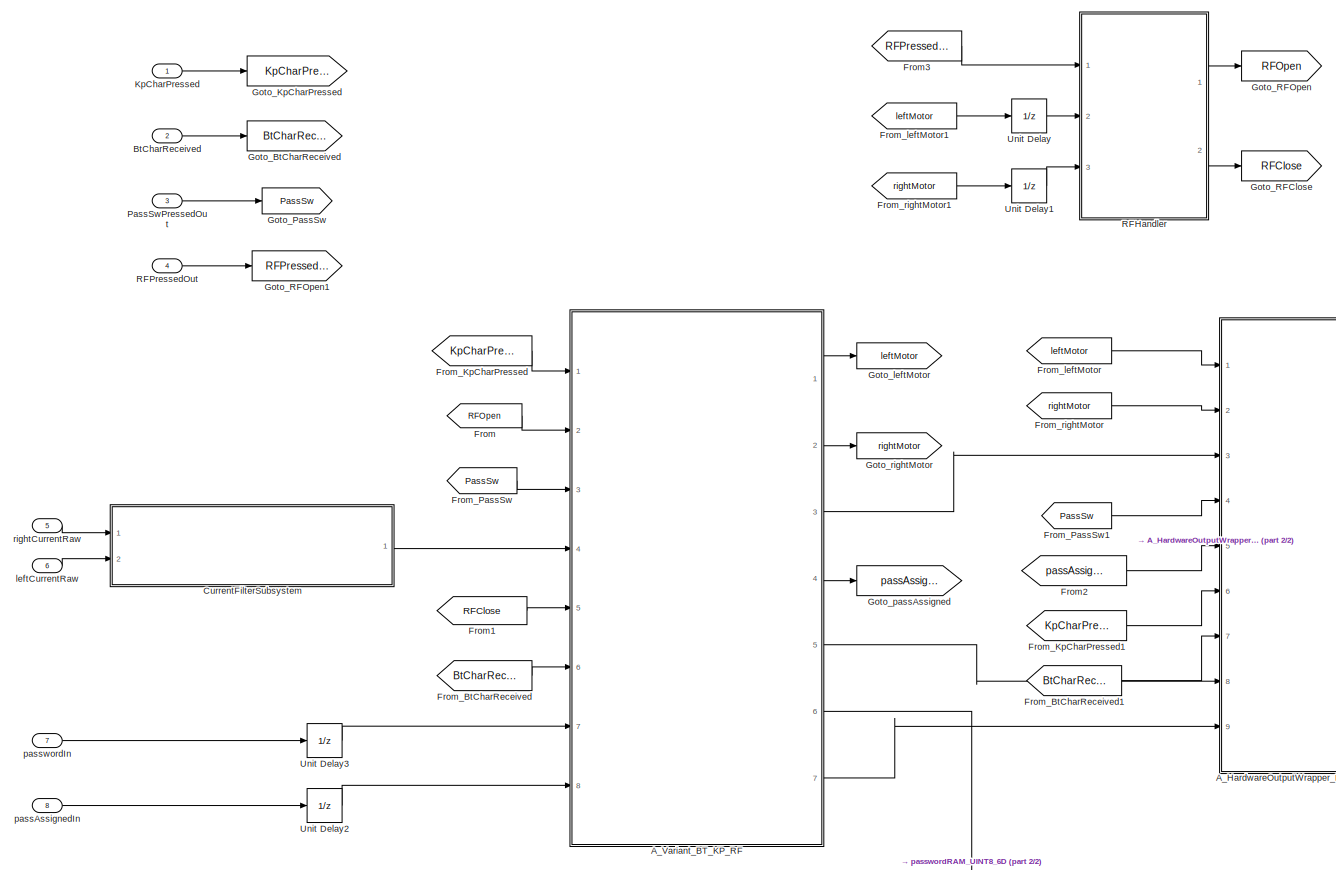
[diagram: root canvas - part 1/2, most of the canvas]
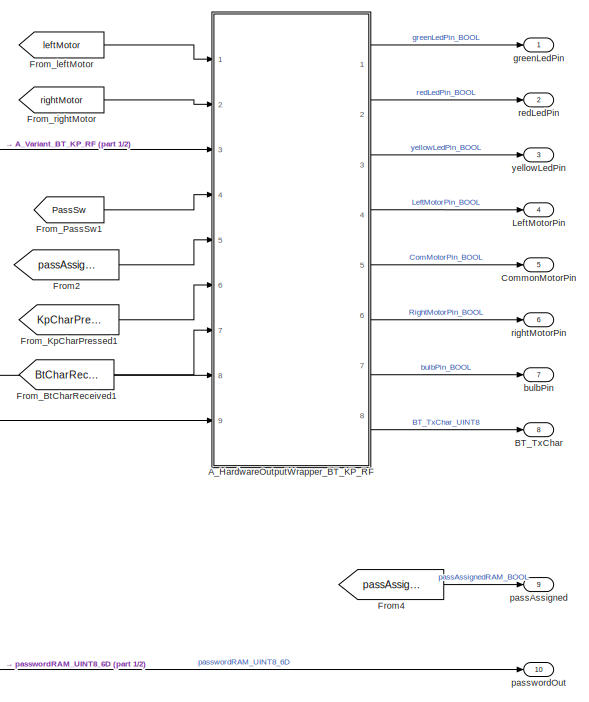
[diagram: root canvas - part 2/2, middle right region]
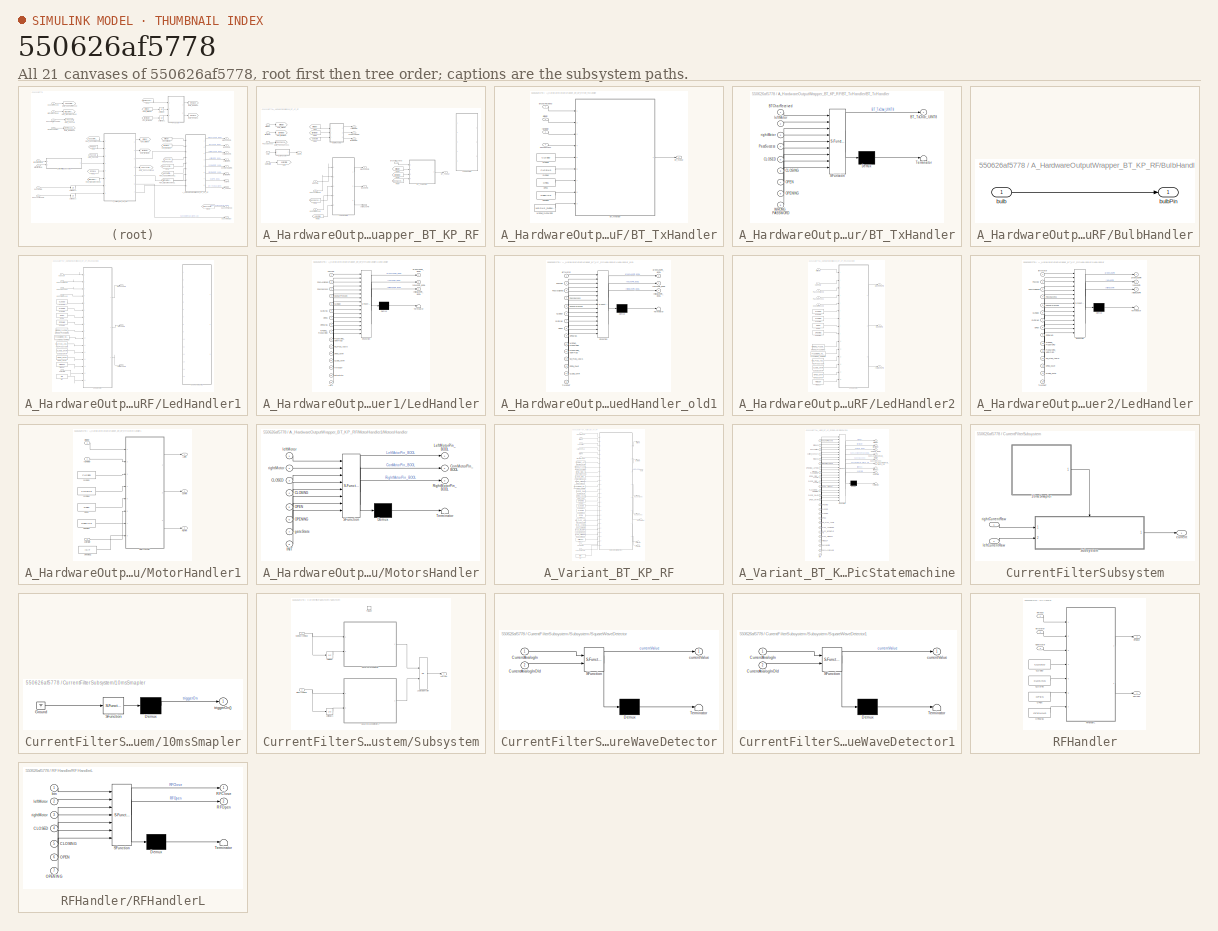
[diagram: thumbnail index - all 21 canvases of the model, root first then tree order]
MODEL slx_550626af5778
KIND model
CONFIG AbsTol = auto
CONFIG FixedStep = auto
CONFIG MaxStep = auto
CONFIG MinStep = auto
CONFIG RelTol = 1e-3
CONFIG SampleTimeConstraint = Unconstrained
CONFIG Solver = FixedStepDiscrete
CONFIG SolverMode = Auto
CONFIG SolverName = FixedStepDiscrete
CONFIG StartTime = 0.0
CONFIG StopTime = 120
BLOCK [SubSystem] A_HardwareOutputWrapper_BT_KP_RF
  Ports = [9, 8]
  RequestExecContextInheritance = off
  Variant = off
  VariantControl = Variant1
BLOCK [Inport] A_HardwareOutputWrapper_BT_KP_RF/BTCharReceived
  IconDisplay = Port number
  Port = 7
BLOCK [Outport] A_HardwareOutputWrapper_BT_KP_RF/BT_TxChar
  IconDisplay = Port number
  Port = 8
BLOCK [SubSystem] A_HardwareOutputWrapper_BT_KP_RF/BT_TxHandler
  Ports = [4, 1]
  RequestExecContextInheritance = off
  Variant = off
BLOCK [Inport] A_HardwareOutputWrapper_BT_KP_RF/BT_TxHandler/BTCharReceived
  IconDisplay = Port number
BLOCK [Outport] A_HardwareOutputWrapper_BT_KP_RF/BT_TxHandler/BT_TxChar
  IconDisplay = Port number
BLOCK [SubSystem] A_HardwareOutputWrapper_BT_KP_RF/BT_TxHandler/BT_TxHandler
  ErrorFcn = Stateflow.Translate.translate
  PermitHierarchicalResolution = ExplicitOnly
  Ports = [9, 1]
  RequestExecContextInheritance = off
  SFBlockType = Chart
  TreatAsAtomicUnit = on
  Variant = off
BLOCK [Demux] A_HardwareOutputWrapper_BT_KP_RF/BT_TxHandler/BT_TxHandler/ Demux 
  Outputs = 1
  Ports = [1, 1]
BLOCK [S-Function] A_HardwareOutputWrapper_BT_KP_RF/BT_TxHandler/BT_TxHandler/ SFunction 
  EnableBusSupport = on
  FunctionName = sf_sfun
  PortCounts = [9 2]
  Ports = [9, 2]
  SFunctionDeploymentMode = off
  Tag = Stateflow S-Function GATE_A 26
BLOCK [Terminator] A_HardwareOutputWrapper_BT_KP_RF/BT_TxHandler/BT_TxHandler/ Terminator 
BLOCK [Inport] A_HardwareOutputWrapper_BT_KP_RF/BT_TxHandler/BT_TxHandler/BTCharReceived
  IconDisplay = Port number
BLOCK [Outport] A_HardwareOutputWrapper_BT_KP_RF/BT_TxHandler/BT_TxHandler/BT_TxChar_UINT8
  IconDisplay = Port number
BLOCK [Inport] A_HardwareOutputWrapper_BT_KP_RF/BT_TxHandler/BT_TxHandler/CLOSED
  IconDisplay = Port number
  Port = 5
BLOCK [Inport] A_HardwareOutputWrapper_BT_KP_RF/BT_TxHandler/BT_TxHandler/CLOSING
  IconDisplay = Port number
  Port = 6
BLOCK [Inport] A_HardwareOutputWrapper_BT_KP_RF/BT_TxHandler/BT_TxHandler/OPEN
  IconDisplay = Port number
  Port = 7
BLOCK [Inport] A_HardwareOutputWrapper_BT_KP_RF/BT_TxHandler/BT_TxHandler/OPENING
  IconDisplay = Port number
  Port = 8
BLOCK [Inport] A_HardwareOutputWrapper_BT_KP_RF/BT_TxHandler/BT_TxHandler/PassSuccess
  IconDisplay = Port number
  Port = 4
BLOCK [Inport] A_HardwareOutputWrapper_BT_KP_RF/BT_TxHandler/BT_TxHandler/WRONG_PASSWORD
  IconDisplay = Port number
  Port = 9
BLOCK [Inport] A_HardwareOutputWrapper_BT_KP_RF/BT_TxHandler/BT_TxHandler/leftMotor
  IconDisplay = Port number
  Port = 2
BLOCK [Inport] A_HardwareOutputWrapper_BT_KP_RF/BT_TxHandler/BT_TxHandler/rightMotor
  IconDisplay = Port number
  Port = 3
BLOCK [Constant] A_HardwareOutputWrapper_BT_KP_RF/BT_TxHandler/CLOSED
  SampleTime = -1
  Value = CLOSED
BLOCK [Constant] A_HardwareOutputWrapper_BT_KP_RF/BT_TxHandler/CLOSING
  SampleTime = -1
  Value = CLOSING
BLOCK [Constant] A_HardwareOutputWrapper_BT_KP_RF/BT_TxHandler/OPEN
  SampleTime = -1
  Value = OPEN
BLOCK [Constant] A_HardwareOutputWrapper_BT_KP_RF/BT_TxHandler/OPENING
  SampleTime = -1
  Value = OPENING
BLOCK [Inport] A_HardwareOutputWrapper_BT_KP_RF/BT_TxHandler/PassSuccess
  IconDisplay = Port number
  Port = 4
BLOCK [Constant] A_HardwareOutputWrapper_BT_KP_RF/BT_TxHandler/WRONG_PASSWORD
  SampleTime = -1
  Value = WRONG_PASSWORD
BLOCK [Inport] A_HardwareOutputWrapper_BT_KP_RF/BT_TxHandler/leftMotor
  IconDisplay = Port number
  Port = 2
BLOCK [Inport] A_HardwareOutputWrapper_BT_KP_RF/BT_TxHandler/rightMotor
  IconDisplay = Port number
  Port = 3
BLOCK [SubSystem] A_HardwareOutputWrapper_BT_KP_RF/BulbHandler
  Ports = [1, 1]
  RequestExecContextInheritance = off
  Variant = off
BLOCK [Inport] A_HardwareOutputWrapper_BT_KP_RF/BulbHandler/bulb
  IconDisplay = Port number
BLOCK [Outport] A_HardwareOutputWrapper_BT_KP_RF/BulbHandler/bulbPin
  IconDisplay = Port number
BLOCK [Outport] A_HardwareOutputWrapper_BT_KP_RF/CommonMotorPin
  IconDisplay = Port number
  Port = 5
BLOCK [From] A_HardwareOutputWrapper_BT_KP_RF/From
  GotoTag = leftMotor
BLOCK [From] A_HardwareOutputWrapper_BT_KP_RF/From1
  GotoTag = gateState
BLOCK [From] A_HardwareOutputWrapper_BT_KP_RF/From2
  GotoTag = rightMotor
BLOCK [From] A_HardwareOutputWrapper_BT_KP_RF/From3
  GotoTag = gateState
BLOCK [From] A_HardwareOutputWrapper_BT_KP_RF/From4
  GotoTag = leftMotor
BLOCK [From] A_HardwareOutputWrapper_BT_KP_RF/From5
  GotoTag = rightMotor
BLOCK [From] A_HardwareOutputWrapper_BT_KP_RF/From6
  GotoTag = PassSuccess
BLOCK [From] A_HardwareOutputWrapper_BT_KP_RF/From7
  GotoTag = PassSuccess
BLOCK [Goto] A_HardwareOutputWrapper_BT_KP_RF/Goto
  GotoTag = gateState
BLOCK [Goto] A_HardwareOutputWrapper_BT_KP_RF/Goto_PassSuccess
  GotoTag = PassSuccess
BLOCK [Goto] A_HardwareOutputWrapper_BT_KP_RF/Goto_leftMotor
  GotoTag = leftMotor
BLOCK [Goto] A_HardwareOutputWrapper_BT_KP_RF/Goto_rightMotor
  GotoTag = rightMotor
BLOCK [Inport] A_HardwareOutputWrapper_BT_KP_RF/KpCharPressed
  IconDisplay = Port number
  Port = 6
BLOCK [SubSystem] A_HardwareOutputWrapper_BT_KP_RF/LedHandler1
  Ports = [5, 3]
  RequestExecContextInheritance = off
  Variant = off
BLOCK [Constant] A_HardwareOutputWrapper_BT_KP_RF/LedHandler1/CLOSED
  SampleTime = -1
  Value = CLOSED
BLOCK [Constant] A_HardwareOutputWrapper_BT_KP_RF/LedHandler1/CLOSE_CHAR
  SampleTime = -1
  Value = CLOSE_CHAR
BLOCK [Constant] A_HardwareOutputWrapper_BT_KP_RF/LedHandler1/CLOSING
  SampleTime = -1
  Value = CLOSING
BLOCK [Constant] A_HardwareOutputWrapper_BT_KP_RF/LedHandler1/INIT
  SampleTime = -1
  Value = INIT
BLOCK [Inport] A_HardwareOutputWrapper_BT_KP_RF/LedHandler1/KpCharPressed
  IconDisplay = Port number
  Port = 4
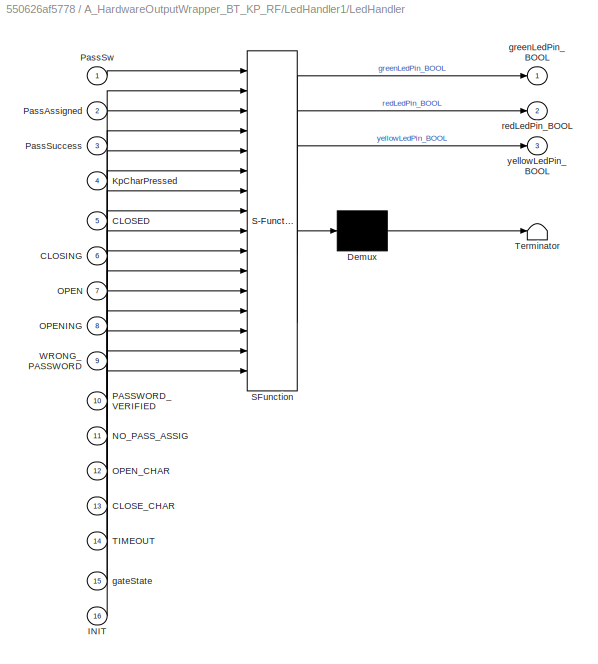
BLOCK [SubSystem] A_HardwareOutputWrapper_BT_KP_RF/LedHandler1/LedHandler
  ErrorFcn = Stateflow.Translate.translate
  PermitHierarchicalResolution = ExplicitOnly
  Ports = [16, 3]
  RequestExecContextInheritance = off
  SFBlockType = Chart
  TreatAsAtomicUnit = on
  Variant = off
BLOCK [Demux] A_HardwareOutputWrapper_BT_KP_RF/LedHandler1/LedHandler/ Demux 
  Outputs = 1
  Ports = [1, 1]
BLOCK [S-Function] A_HardwareOutputWrapper_BT_KP_RF/LedHandler1/LedHandler/ SFunction 
  EnableBusSupport = on
  FunctionName = sf_sfun
  PortCounts = [16 4]
  Ports = [16, 4]
  SFunctionDeploymentMode = off
  Tag = Stateflow S-Function GATE_A 16
BLOCK [Terminator] A_HardwareOutputWrapper_BT_KP_RF/LedHandler1/LedHandler/ Terminator 
BLOCK [Inport] A_HardwareOutputWrapper_BT_KP_RF/LedHandler1/LedHandler/CLOSED
  IconDisplay = Port number
  Port = 5
BLOCK [Inport] A_HardwareOutputWrapper_BT_KP_RF/LedHandler1/LedHandler/CLOSE_CHAR
  IconDisplay = Port number
  Port = 13
BLOCK [Inport] A_HardwareOutputWrapper_BT_KP_RF/LedHandler1/LedHandler/CLOSING
  IconDisplay = Port number
  Port = 6
BLOCK [Inport] A_HardwareOutputWrapper_BT_KP_RF/LedHandler1/LedHandler/INIT
  IconDisplay = Port number
  Port = 16
BLOCK [Inport] A_HardwareOutputWrapper_BT_KP_RF/LedHandler1/LedHandler/KpCharPressed
  IconDisplay = Port number
  Port = 4
BLOCK [Inport] A_HardwareOutputWrapper_BT_KP_RF/LedHandler1/LedHandler/NO_PASS_ASSIG
  IconDisplay = Port number
  Port = 11
BLOCK [Inport] A_HardwareOutputWrapper_BT_KP_RF/LedHandler1/LedHandler/OPEN
  IconDisplay = Port number
  Port = 7
BLOCK [Inport] A_HardwareOutputWrapper_BT_KP_RF/LedHandler1/LedHandler/OPENING
  IconDisplay = Port number
  Port = 8
BLOCK [Inport] A_HardwareOutputWrapper_BT_KP_RF/LedHandler1/LedHandler/OPEN_CHAR
  IconDisplay = Port number
  Port = 12
BLOCK [Inport] A_HardwareOutputWrapper_BT_KP_RF/LedHandler1/LedHandler/PASSWORD_VERIFIED
  IconDisplay = Port number
  Port = 10
BLOCK [Inport] A_HardwareOutputWrapper_BT_KP_RF/LedHandler1/LedHandler/PassAssigned
  IconDisplay = Port number
  Port = 2
BLOCK [Inport] A_HardwareOutputWrapper_BT_KP_RF/LedHandler1/LedHandler/PassSuccess
  IconDisplay = Port number
  Port = 3
BLOCK [Inport] A_HardwareOutputWrapper_BT_KP_RF/LedHandler1/LedHandler/PassSw
  IconDisplay = Port number
BLOCK [Inport] A_HardwareOutputWrapper_BT_KP_RF/LedHandler1/LedHandler/TIMEOUT
  IconDisplay = Port number
  Port = 14
BLOCK [Inport] A_HardwareOutputWrapper_BT_KP_RF/LedHandler1/LedHandler/WRONG_PASSWORD
  IconDisplay = Port number
  Port = 9
BLOCK [Inport] A_HardwareOutputWrapper_BT_KP_RF/LedHandler1/LedHandler/gateState
  IconDisplay = Port number
  Port = 15
BLOCK [Outport] A_HardwareOutputWrapper_BT_KP_RF/LedHandler1/LedHandler/greenLedPin_BOOL
  IconDisplay = Port number
BLOCK [Outport] A_HardwareOutputWrapper_BT_KP_RF/LedHandler1/LedHandler/redLedPin_BOOL
  IconDisplay = Port number
  Port = 2
BLOCK [Outport] A_HardwareOutputWrapper_BT_KP_RF/LedHandler1/LedHandler/yellowLedPin_BOOL
  IconDisplay = Port number
  Port = 3
BLOCK [SubSystem] A_HardwareOutputWrapper_BT_KP_RF/LedHandler1/LedHandler_old1
  Commented = on
  ErrorFcn = Stateflow.Translate.translate
  PermitHierarchicalResolution = ExplicitOnly
  Ports = [15, 3]
  RequestExecContextInheritance = off
  SFBlockType = Chart
  TreatAsAtomicUnit = on
  Variant = off
BLOCK [Demux] A_HardwareOutputWrapper_BT_KP_RF/LedHandler1/LedHandler_old1/ Demux 
  Outputs = 1
  Ports = [1, 1]
BLOCK [S-Function] A_HardwareOutputWrapper_BT_KP_RF/LedHandler1/LedHandler_old1/ SFunction 
  EnableBusSupport = on
  FunctionName = sf_sfun
  PortCounts = [15 4]
  Ports = [15, 4]
  SFunctionDeploymentMode = off
  Tag = Stateflow S-Function GATE_A 13
BLOCK [Terminator] A_HardwareOutputWrapper_BT_KP_RF/LedHandler1/LedHandler_old1/ Terminator 
BLOCK [Inport] A_HardwareOutputWrapper_BT_KP_RF/LedHandler1/LedHandler_old1/CLOSED
  IconDisplay = Port number
  Port = 6
BLOCK [Inport] A_HardwareOutputWrapper_BT_KP_RF/LedHandler1/LedHandler_old1/CLOSE_CHAR
  IconDisplay = Port number
  Port = 14
BLOCK [Inport] A_HardwareOutputWrapper_BT_KP_RF/LedHandler1/LedHandler_old1/CLOSING
  IconDisplay = Port number
  Port = 7
BLOCK [Inport] A_HardwareOutputWrapper_BT_KP_RF/LedHandler1/LedHandler_old1/KpCharPressed
  IconDisplay = Port number
  Port = 5
BLOCK [Inport] A_HardwareOutputWrapper_BT_KP_RF/LedHandler1/LedHandler_old1/NO_PASS_ASSIG
  IconDisplay = Port number
  Port = 12
BLOCK [Inport] A_HardwareOutputWrapper_BT_KP_RF/LedHandler1/LedHandler_old1/OPEN
  IconDisplay = Port number
  Port = 8
BLOCK [Inport] A_HardwareOutputWrapper_BT_KP_RF/LedHandler1/LedHandler_old1/OPENING
  IconDisplay = Port number
  Port = 9
BLOCK [Inport] A_HardwareOutputWrapper_BT_KP_RF/LedHandler1/LedHandler_old1/OPEN_CHAR
  IconDisplay = Port number
  Port = 13
BLOCK [Inport] A_HardwareOutputWrapper_BT_KP_RF/LedHandler1/LedHandler_old1/PASSWORD_VERIFIED
  IconDisplay = Port number
  Port = 11
BLOCK [Inport] A_HardwareOutputWrapper_BT_KP_RF/LedHandler1/LedHandler_old1/PassAssigned
  IconDisplay = Port number
  Port = 3
BLOCK [Inport] A_HardwareOutputWrapper_BT_KP_RF/LedHandler1/LedHandler_old1/PassSuccess
  IconDisplay = Port number
  Port = 4
BLOCK [Inport] A_HardwareOutputWrapper_BT_KP_RF/LedHandler1/LedHandler_old1/PassSw
  IconDisplay = Port number
  Port = 2
BLOCK [Inport] A_HardwareOutputWrapper_BT_KP_RF/LedHandler1/LedHandler_old1/TIMEOUT
  IconDisplay = Port number
  Port = 15
BLOCK [Inport] A_HardwareOutputWrapper_BT_KP_RF/LedHandler1/LedHandler_old1/WRONG_PASSWORD
  IconDisplay = Port number
  Port = 10
BLOCK [Outport] A_HardwareOutputWrapper_BT_KP_RF/LedHandler1/LedHandler_old1/greenLedPin_BOOL
  IconDisplay = Port number
BLOCK [Inport] A_HardwareOutputWrapper_BT_KP_RF/LedHandler1/LedHandler_old1/leftMotor
  IconDisplay = Port number
BLOCK [Outport] A_HardwareOutputWrapper_BT_KP_RF/LedHandler1/LedHandler_old1/redLedPin_BOOL
  IconDisplay = Port number
  Port = 2
BLOCK [Outport] A_HardwareOutputWrapper_BT_KP_RF/LedHandler1/LedHandler_old1/yellowLedPin_BOOL
  IconDisplay = Port number
  Port = 3
BLOCK [Constant] A_HardwareOutputWrapper_BT_KP_RF/LedHandler1/NO_PASS_ASSIG
  SampleTime = -1
  Value = NO_PASS_ASSIG
BLOCK [Constant] A_HardwareOutputWrapper_BT_KP_RF/LedHandler1/OPEN
  SampleTime = -1
  Value = OPEN
BLOCK [Constant] A_HardwareOutputWrapper_BT_KP_RF/LedHandler1/OPENING
  SampleTime = -1
  Value = OPENING
BLOCK [Constant] A_HardwareOutputWrapper_BT_KP_RF/LedHandler1/OPEN_CHAR
  SampleTime = -1
  Value = OPEN_CHAR
BLOCK [Constant] A_HardwareOutputWrapper_BT_KP_RF/LedHandler1/PASSWORD_VERIFIED
  SampleTime = -1
  Value = PASSWORD_VERIFIED
BLOCK [Inport] A_HardwareOutputWrapper_BT_KP_RF/LedHandler1/PassAssigned
  IconDisplay = Port number
  Port = 2
BLOCK [Inport] A_HardwareOutputWrapper_BT_KP_RF/LedHandler1/PassSuccess
  IconDisplay = Port number
  Port = 3
BLOCK [Constant] A_HardwareOutputWrapper_BT_KP_RF/LedHandler1/TIMEOUT
  SampleTime = -1
  Value = TIMEOUT
BLOCK [Constant] A_HardwareOutputWrapper_BT_KP_RF/LedHandler1/WRONG_PASSWORD
  SampleTime = -1
  Value = WRONG_PASSWORD
BLOCK [Inport] A_HardwareOutputWrapper_BT_KP_RF/LedHandler1/gateState
  IconDisplay = Port number
  Port = 5
BLOCK [Outport] A_HardwareOutputWrapper_BT_KP_RF/LedHandler1/greenLedPin
  IconDisplay = Port number
BLOCK [Inport] A_HardwareOutputWrapper_BT_KP_RF/LedHandler1/passSw
  IconDisplay = Port number
BLOCK [Outport] A_HardwareOutputWrapper_BT_KP_RF/LedHandler1/redLedPin
  IconDisplay = Port number
  Port = 2
BLOCK [Outport] A_HardwareOutputWrapper_BT_KP_RF/LedHandler1/yellowLedPin
  IconDisplay = Port number
  Port = 3
BLOCK [SubSystem] A_HardwareOutputWrapper_BT_KP_RF/LedHandler2
  Commented = on
  Ports = [5, 3]
  RequestExecContextInheritance = off
  Variant = off
BLOCK [Constant] A_HardwareOutputWrapper_BT_KP_RF/LedHandler2/CLOSED
  SampleTime = -1
  Value = CLOSED
BLOCK [Constant] A_HardwareOutputWrapper_BT_KP_RF/LedHandler2/CLOSE_CHAR
  SampleTime = -1
  Value = CLOSE_CHAR
BLOCK [Constant] A_HardwareOutputWrapper_BT_KP_RF/LedHandler2/CLOSING
  SampleTime = -1
  Value = CLOSING
BLOCK [Inport] A_HardwareOutputWrapper_BT_KP_RF/LedHandler2/KpCharPressed
  IconDisplay = Port number
  Port = 5
BLOCK [SubSystem] A_HardwareOutputWrapper_BT_KP_RF/LedHandler2/LedHandler
  ErrorFcn = Stateflow.Translate.translate
  PermitHierarchicalResolution = ExplicitOnly
  Ports = [15, 3]
  RequestExecContextInheritance = off
  SFBlockType = Chart
  TreatAsAtomicUnit = on
  Variant = off
BLOCK [Demux] A_HardwareOutputWrapper_BT_KP_RF/LedHandler2/LedHandler/ Demux 
  Outputs = 1
  Ports = [1, 1]
BLOCK [S-Function] A_HardwareOutputWrapper_BT_KP_RF/LedHandler2/LedHandler/ SFunction 
  EnableBusSupport = on
  FunctionName = sf_sfun
  PortCounts = [15 4]
  Ports = [15, 4]
  SFunctionDeploymentMode = off
  Tag = Stateflow S-Function GATE_A 1
BLOCK [Terminator] A_HardwareOutputWrapper_BT_KP_RF/LedHandler2/LedHandler/ Terminator 
BLOCK [Inport] A_HardwareOutputWrapper_BT_KP_RF/LedHandler2/LedHandler/CLOSED
  IconDisplay = Port number
  Port = 6
BLOCK [Inport] A_HardwareOutputWrapper_BT_KP_RF/LedHandler2/LedHandler/CLOSE_CHAR
  IconDisplay = Port number
  Port = 14
BLOCK [Inport] A_HardwareOutputWrapper_BT_KP_RF/LedHandler2/LedHandler/CLOSING
  IconDisplay = Port number
  Port = 7
BLOCK [Inport] A_HardwareOutputWrapper_BT_KP_RF/LedHandler2/LedHandler/KpCharPressed
  IconDisplay = Port number
  Port = 5
BLOCK [Inport] A_HardwareOutputWrapper_BT_KP_RF/LedHandler2/LedHandler/NO_PASS_ASSIG
  IconDisplay = Port number
  Port = 12
BLOCK [Inport] A_HardwareOutputWrapper_BT_KP_RF/LedHandler2/LedHandler/OPEN
  IconDisplay = Port number
  Port = 8
BLOCK [Inport] A_HardwareOutputWrapper_BT_KP_RF/LedHandler2/LedHandler/OPENING
  IconDisplay = Port number
  Port = 9
BLOCK [Inport] A_HardwareOutputWrapper_BT_KP_RF/LedHandler2/LedHandler/OPEN_CHAR
  IconDisplay = Port number
  Port = 13
BLOCK [Inport] A_HardwareOutputWrapper_BT_KP_RF/LedHandler2/LedHandler/PASSWORD_VERIFIED
  IconDisplay = Port number
  Port = 11
BLOCK [Inport] A_HardwareOutputWrapper_BT_KP_RF/LedHandler2/LedHandler/PassAssigned
  IconDisplay = Port number
  Port = 3
BLOCK [Inport] A_HardwareOutputWrapper_BT_KP_RF/LedHandler2/LedHandler/PassSuccess
  IconDisplay = Port number
  Port = 4
BLOCK [Inport] A_HardwareOutputWrapper_BT_KP_RF/LedHandler2/LedHandler/PassSw
  IconDisplay = Port number
  Port = 2
BLOCK [Inport] A_HardwareOutputWrapper_BT_KP_RF/LedHandler2/LedHandler/TIMEOUT
  IconDisplay = Port number
  Port = 15
BLOCK [Inport] A_HardwareOutputWrapper_BT_KP_RF/LedHandler2/LedHandler/WRONG_PASSWORD
  IconDisplay = Port number
  Port = 10
BLOCK [Outport] A_HardwareOutputWrapper_BT_KP_RF/LedHandler2/LedHandler/greenLedPin
  IconDisplay = Port number
BLOCK [Inport] A_HardwareOutputWrapper_BT_KP_RF/LedHandler2/LedHandler/leftMotor
  IconDisplay = Port number
BLOCK [Outport] A_HardwareOutputWrapper_BT_KP_RF/LedHandler2/LedHandler/redLedPin
  IconDisplay = Port number
  Port = 2
BLOCK [Outport] A_HardwareOutputWrapper_BT_KP_RF/LedHandler2/LedHandler/yellowLedPin
  IconDisplay = Port number
  Port = 3
BLOCK [Constant] A_HardwareOutputWrapper_BT_KP_RF/LedHandler2/NO_PASS_ASSIG
  SampleTime = -1
  Value = NO_PASS_ASSIG
BLOCK [Constant] A_HardwareOutputWrapper_BT_KP_RF/LedHandler2/OPEN
  SampleTime = -1
  Value = OPEN
BLOCK [Constant] A_HardwareOutputWrapper_BT_KP_RF/LedHandler2/OPENING
  SampleTime = -1
  Value = OPENING
BLOCK [Constant] A_HardwareOutputWrapper_BT_KP_RF/LedHandler2/OPEN_CHAR
  SampleTime = -1
  Value = OPEN_CHAR
BLOCK [Constant] A_HardwareOutputWrapper_BT_KP_RF/LedHandler2/PASSWORD_VERIFIED
  SampleTime = -1
  Value = PASSWORD_VERIFIED
BLOCK [Inport] A_HardwareOutputWrapper_BT_KP_RF/LedHandler2/PassAssigned
  IconDisplay = Port number
  Port = 3
BLOCK [Inport] A_HardwareOutputWrapper_BT_KP_RF/LedHandler2/PassSuccess
  IconDisplay = Port number
  Port = 4
BLOCK [Constant] A_HardwareOutputWrapper_BT_KP_RF/LedHandler2/TIMEOUT
  SampleTime = -1
  Value = TIMEOUT
BLOCK [Constant] A_HardwareOutputWrapper_BT_KP_RF/LedHandler2/WRONG_PASSWORD
  SampleTime = -1
  Value = WRONG_PASSWORD
BLOCK [Outport] A_HardwareOutputWrapper_BT_KP_RF/LedHandler2/greenLedPin
  IconDisplay = Port number
BLOCK [Inport] A_HardwareOutputWrapper_BT_KP_RF/LedHandler2/leftMotor
  IconDisplay = Port number
BLOCK [Inport] A_HardwareOutputWrapper_BT_KP_RF/LedHandler2/passSw
  IconDisplay = Port number
  Port = 2
BLOCK [Outport] A_HardwareOutputWrapper_BT_KP_RF/LedHandler2/redLedPin
  IconDisplay = Port number
  Port = 2
BLOCK [Outport] A_HardwareOutputWrapper_BT_KP_RF/LedHandler2/yellowLedPin
  IconDisplay = Port number
  Port = 3
BLOCK [Outport] A_HardwareOutputWrapper_BT_KP_RF/LeftMotorPin
  IconDisplay = Port number
  Port = 4
BLOCK [SubSystem] A_HardwareOutputWrapper_BT_KP_RF/MotorHandler1
  Ports = [3, 3]
  RequestExecContextInheritance = off
  Variant = off
BLOCK [Constant] A_HardwareOutputWrapper_BT_KP_RF/MotorHandler1/CLOSED
  SampleTime = -1
  Value = CLOSED
BLOCK [Constant] A_HardwareOutputWrapper_BT_KP_RF/MotorHandler1/CLOSING
  SampleTime = -1
  Value = CLOSING
BLOCK [Outport] A_HardwareOutputWrapper_BT_KP_RF/MotorHandler1/ComPin
  IconDisplay = Port number
  Port = 2
BLOCK [Outport] A_HardwareOutputWrapper_BT_KP_RF/MotorHandler1/LeftPin
  IconDisplay = Port number
BLOCK [SubSystem] A_HardwareOutputWrapper_BT_KP_RF/MotorHandler1/MotorsHandler
  ErrorFcn = Stateflow.Translate.translate
  PermitHierarchicalResolution = ExplicitOnly
  Ports = [8, 3]
  RequestExecContextInheritance = off
  SFBlockType = Chart
  TreatAsAtomicUnit = on
  Variant = off
BLOCK [Demux] A_HardwareOutputWrapper_BT_KP_RF/MotorHandler1/MotorsHandler/ Demux 
  Outputs = 1
  Ports = [1, 1]
BLOCK [S-Function] A_HardwareOutputWrapper_BT_KP_RF/MotorHandler1/MotorsHandler/ SFunction 
  EnableBusSupport = on
  FunctionName = sf_sfun
  PortCounts = [8 4]
  Ports = [8, 4]
  SFunctionDeploymentMode = off
  Tag = Stateflow S-Function GATE_A 19
BLOCK [Terminator] A_HardwareOutputWrapper_BT_KP_RF/MotorHandler1/MotorsHandler/ Terminator 
BLOCK [Inport] A_HardwareOutputWrapper_BT_KP_RF/MotorHandler1/MotorsHandler/CLOSED
  IconDisplay = Port number
  Port = 3
BLOCK [Inport] A_HardwareOutputWrapper_BT_KP_RF/MotorHandler1/MotorsHandler/CLOSING
  IconDisplay = Port number
  Port = 4
BLOCK [Outport] A_HardwareOutputWrapper_BT_KP_RF/MotorHandler1/MotorsHandler/ComMotorPin_BOOL
  IconDisplay = Port number
  Port = 2
BLOCK [Inport] A_HardwareOutputWrapper_BT_KP_RF/MotorHandler1/MotorsHandler/INIT
  IconDisplay = Port number
  Port = 8
BLOCK [Outport] A_HardwareOutputWrapper_BT_KP_RF/MotorHandler1/MotorsHandler/LeftMotorPin_BOOL
  IconDisplay = Port number
BLOCK [Inport] A_HardwareOutputWrapper_BT_KP_RF/MotorHandler1/MotorsHandler/OPEN
  IconDisplay = Port number
  Port = 5
BLOCK [Inport] A_HardwareOutputWrapper_BT_KP_RF/MotorHandler1/MotorsHandler/OPENING
  IconDisplay = Port number
  Port = 6
BLOCK [Outport] A_HardwareOutputWrapper_BT_KP_RF/MotorHandler1/MotorsHandler/RightMotorPin_BOOL
  IconDisplay = Port number
  Port = 3
BLOCK [Inport] A_HardwareOutputWrapper_BT_KP_RF/MotorHandler1/MotorsHandler/gateState
  IconDisplay = Port number
  Port = 7
BLOCK [Inport] A_HardwareOutputWrapper_BT_KP_RF/MotorHandler1/MotorsHandler/leftMotor
  IconDisplay = Port number
BLOCK [Inport] A_HardwareOutputWrapper_BT_KP_RF/MotorHandler1/MotorsHandler/rightMotor
  IconDisplay = Port number
  Port = 2
BLOCK [Constant] A_HardwareOutputWrapper_BT_KP_RF/MotorHandler1/OPEN
  SampleTime = -1
  Value = OPEN
BLOCK [Constant] A_HardwareOutputWrapper_BT_KP_RF/MotorHandler1/OPENING
  SampleTime = -1
  Value = OPENING
BLOCK [Constant] A_HardwareOutputWrapper_BT_KP_RF/MotorHandler1/OPENING1
  SampleTime = -1
  Value = INIT
BLOCK [Outport] A_HardwareOutputWrapper_BT_KP_RF/MotorHandler1/RightPin
  IconDisplay = Port number
  Port = 3
BLOCK [Inport] A_HardwareOutputWrapper_BT_KP_RF/MotorHandler1/gateState
  IconDisplay = Port number
  Port = 3
BLOCK [Inport] A_HardwareOutputWrapper_BT_KP_RF/MotorHandler1/leftMotor
  IconDisplay = Port number
BLOCK [Inport] A_HardwareOutputWrapper_BT_KP_RF/MotorHandler1/rightMotor
  IconDisplay = Port number
  Port = 2
BLOCK [Inport] A_HardwareOutputWrapper_BT_KP_RF/PassAssigned
  IconDisplay = Port number
  Port = 5
BLOCK [Inport] A_HardwareOutputWrapper_BT_KP_RF/PassSuccess
  IconDisplay = Port number
  Port = 8
BLOCK [Inport] A_HardwareOutputWrapper_BT_KP_RF/bulb
  IconDisplay = Port number
  Port = 3
BLOCK [Outport] A_HardwareOutputWrapper_BT_KP_RF/bulbPin
  IconDisplay = Port number
  Port = 7
BLOCK [Inport] A_HardwareOutputWrapper_BT_KP_RF/gateState
  IconDisplay = Port number
  Port = 9
BLOCK [Outport] A_HardwareOutputWrapper_BT_KP_RF/greenLedPin
  IconDisplay = Port number
BLOCK [Inport] A_HardwareOutputWrapper_BT_KP_RF/leftMotor
  IconDisplay = Port number
BLOCK [Inport] A_HardwareOutputWrapper_BT_KP_RF/passSw
  IconDisplay = Port number
  Port = 4
BLOCK [Outport] A_HardwareOutputWrapper_BT_KP_RF/redLedPin
  IconDisplay = Port number
  Port = 2
BLOCK [Inport] A_HardwareOutputWrapper_BT_KP_RF/rightMotor
  IconDisplay = Port number
  Port = 2
BLOCK [Outport] A_HardwareOutputWrapper_BT_KP_RF/rightMotorPin
  IconDisplay = Port number
  Port = 6
BLOCK [Outport] A_HardwareOutputWrapper_BT_KP_RF/yellowLedPin
  IconDisplay = Port number
  Port = 3
BLOCK [SubSystem] A_Variant_BT_KP_RF
  Ports = [8, 7]
  RequestExecContextInheritance = off
  Variant = off
  VariantControl = Variant
BLOCK [Inport] A_Variant_BT_KP_RF/BtCharReceived
  IconDisplay = Port number
  Port = 6
BLOCK [Constant] A_Variant_BT_KP_RF/CLOSED
  SampleTime = -1
  Value = CLOSED
BLOCK [Constant] A_Variant_BT_KP_RF/CLOSE_CHAR
  SampleTime = -1
  Value = CLOSE_CHAR
BLOCK [Constant] A_Variant_BT_KP_RF/CLOSE_SIDE_VALUE
  SampleTime = -1
  Value = CLOSE_SIDE_VALUE
BLOCK [Constant] A_Variant_BT_KP_RF/CLOSING
  SampleTime = -1
  Value = CLOSING
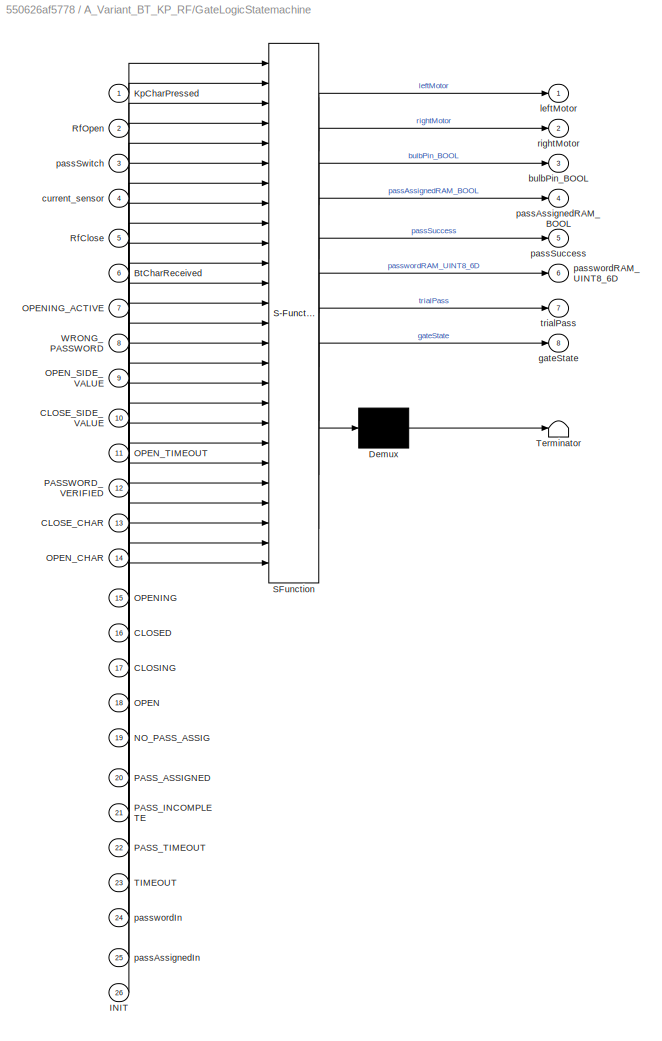
BLOCK [SubSystem] A_Variant_BT_KP_RF/GateLogicStatemachine
  ErrorFcn = Stateflow.Translate.translate
  PermitHierarchicalResolution = ExplicitOnly
  Ports = [26, 8]
  RequestExecContextInheritance = off
  SFBlockType = Chart
  TreatAsAtomicUnit = on
  Variant = off
BLOCK [Demux] A_Variant_BT_KP_RF/GateLogicStatemachine/ Demux 
  Outputs = 1
  Ports = [1, 1]
BLOCK [S-Function] A_Variant_BT_KP_RF/GateLogicStatemachine/ SFunction 
  EnableBusSupport = on
  FunctionName = sf_sfun
  PortCounts = [26 9]
  Ports = [26, 9]
  SFunctionDeploymentMode = off
  Tag = Stateflow S-Function GATE_A 12
BLOCK [Terminator] A_Variant_BT_KP_RF/GateLogicStatemachine/ Terminator 
BLOCK [Inport] A_Variant_BT_KP_RF/GateLogicStatemachine/BtCharReceived
  IconDisplay = Port number
  Port = 6
BLOCK [Inport] A_Variant_BT_KP_RF/GateLogicStatemachine/CLOSED
  IconDisplay = Port number
  Port = 16
BLOCK [Inport] A_Variant_BT_KP_RF/GateLogicStatemachine/CLOSE_CHAR
  IconDisplay = Port number
  Port = 13
BLOCK [Inport] A_Variant_BT_KP_RF/GateLogicStatemachine/CLOSE_SIDE_VALUE
  IconDisplay = Port number
  Port = 10
BLOCK [Inport] A_Variant_BT_KP_RF/GateLogicStatemachine/CLOSING
  IconDisplay = Port number
  Port = 17
BLOCK [Inport] A_Variant_BT_KP_RF/GateLogicStatemachine/INIT
  IconDisplay = Port number
  Port = 26
BLOCK [Inport] A_Variant_BT_KP_RF/GateLogicStatemachine/KpCharPressed
  IconDisplay = Port number
BLOCK [Inport] A_Variant_BT_KP_RF/GateLogicStatemachine/NO_PASS_ASSIG
  IconDisplay = Port number
  Port = 19
BLOCK [Inport] A_Variant_BT_KP_RF/GateLogicStatemachine/OPEN
  IconDisplay = Port number
  Port = 18
BLOCK [Inport] A_Variant_BT_KP_RF/GateLogicStatemachine/OPENING
  IconDisplay = Port number
  Port = 15
BLOCK [Inport] A_Variant_BT_KP_RF/GateLogicStatemachine/OPENING_ACTIVE
  IconDisplay = Port number
  Port = 7
BLOCK [Inport] A_Variant_BT_KP_RF/GateLogicStatemachine/OPEN_CHAR
  IconDisplay = Port number
  Port = 14
BLOCK [Inport] A_Variant_BT_KP_RF/GateLogicStatemachine/OPEN_SIDE_VALUE
  IconDisplay = Port number
  Port = 9
BLOCK [Inport] A_Variant_BT_KP_RF/GateLogicStatemachine/OPEN_TIMEOUT
  IconDisplay = Port number
  Port = 11
BLOCK [Inport] A_Variant_BT_KP_RF/GateLogicStatemachine/PASSWORD_VERIFIED
  IconDisplay = Port number
  Port = 12
BLOCK [Inport] A_Variant_BT_KP_RF/GateLogicStatemachine/PASS_ASSIGNED
  IconDisplay = Port number
  Port = 20
BLOCK [Inport] A_Variant_BT_KP_RF/GateLogicStatemachine/PASS_INCOMPLETE
  IconDisplay = Port number
  Port = 21
BLOCK [Inport] A_Variant_BT_KP_RF/GateLogicStatemachine/PASS_TIMEOUT
  IconDisplay = Port number
  Port = 22
BLOCK [Inport] A_Variant_BT_KP_RF/GateLogicStatemachine/RfClose
  IconDisplay = Port number
  Port = 5
BLOCK [Inport] A_Variant_BT_KP_RF/GateLogicStatemachine/RfOpen
  IconDisplay = Port number
  Port = 2
BLOCK [Inport] A_Variant_BT_KP_RF/GateLogicStatemachine/TIMEOUT
  IconDisplay = Port number
  Port = 23
BLOCK [Inport] A_Variant_BT_KP_RF/GateLogicStatemachine/WRONG_PASSWORD
  IconDisplay = Port number
  Port = 8
BLOCK [Outport] A_Variant_BT_KP_RF/GateLogicStatemachine/bulbPin_BOOL
  IconDisplay = Port number
  Port = 3
BLOCK [Inport] A_Variant_BT_KP_RF/GateLogicStatemachine/current_sensor
  IconDisplay = Port number
  Port = 4
BLOCK [Outport] A_Variant_BT_KP_RF/GateLogicStatemachine/gateState
  IconDisplay = Port number
  Port = 8
BLOCK [Outport] A_Variant_BT_KP_RF/GateLogicStatemachine/leftMotor
  IconDisplay = Port number
BLOCK [Inport] A_Variant_BT_KP_RF/GateLogicStatemachine/passAssignedIn
  IconDisplay = Port number
  Port = 25
BLOCK [Outport] A_Variant_BT_KP_RF/GateLogicStatemachine/passAssignedRAM_BOOL
  IconDisplay = Port number
  Port = 4
BLOCK [Outport] A_Variant_BT_KP_RF/GateLogicStatemachine/passSuccess
  IconDisplay = Port number
  Port = 5
BLOCK [Inport] A_Variant_BT_KP_RF/GateLogicStatemachine/passSwitch
  IconDisplay = Port number
  Port = 3
BLOCK [Inport] A_Variant_BT_KP_RF/GateLogicStatemachine/passwordIn
  IconDisplay = Port number
  Port = 24
BLOCK [Outport] A_Variant_BT_KP_RF/GateLogicStatemachine/passwordRAM_UINT8_6D
  IconDisplay = Port number
  Port = 6
BLOCK [Outport] A_Variant_BT_KP_RF/GateLogicStatemachine/rightMotor
  IconDisplay = Port number
  Port = 2
BLOCK [Outport] A_Variant_BT_KP_RF/GateLogicStatemachine/trialPass
  IconDisplay = Port number
  Port = 7
BLOCK [Constant] A_Variant_BT_KP_RF/INIT
  SampleTime = -1
  Value = INIT
BLOCK [Inport] A_Variant_BT_KP_RF/KpCharPressed
  IconDisplay = Port number
BLOCK [Constant] A_Variant_BT_KP_RF/NO_PASS_ASSIG
  SampleTime = -1
  Value = NO_PASS_ASSIG
BLOCK [Constant] A_Variant_BT_KP_RF/OPEN
  SampleTime = -1
  Value = OPEN
BLOCK [Constant] A_Variant_BT_KP_RF/OPENING
  SampleTime = -1
  Value = OPENING
BLOCK [Constant] A_Variant_BT_KP_RF/OPENING_ACTIVE
  SampleTime = -1
  Value = OPENING_ACTIVE
BLOCK [Constant] A_Variant_BT_KP_RF/OPEN_CHAR
  SampleTime = -1
  Value = OPEN_CHAR
BLOCK [Constant] A_Variant_BT_KP_RF/OPEN_SIDE_VALUE
  SampleTime = -1
  Value = OPEN_SIDE_VALUE
BLOCK [Constant] A_Variant_BT_KP_RF/OPEN_TIMEOUT
  SampleTime = -1
  Value = OPEN_TIMEOUT
BLOCK [Constant] A_Variant_BT_KP_RF/PASSWORD_VERIFIED
  SampleTime = -1
  Value = PASSWORD_VERIFIED
BLOCK [Constant] A_Variant_BT_KP_RF/PASS_ASSIGNED
  SampleTime = -1
  Value = PASS_ASSIGNED
BLOCK [Constant] A_Variant_BT_KP_RF/PASS_INCOMPLETE
  SampleTime = -1
  Value = PASS_INCOMPLETE
BLOCK [Constant] A_Variant_BT_KP_RF/PASS_TIMEOUT
  SampleTime = -1
  Value = PASS_TIMEOUT
BLOCK [Outport] A_Variant_BT_KP_RF/PassAssigned
  IconDisplay = Port number
  Port = 4
BLOCK [Outport] A_Variant_BT_KP_RF/PassSuccess
  IconDisplay = Port number
  Port = 5
BLOCK [Inport] A_Variant_BT_KP_RF/RfClose
  IconDisplay = Port number
  Port = 5
BLOCK [Inport] A_Variant_BT_KP_RF/RfOpen
  IconDisplay = Port number
  Port = 2
BLOCK [Constant] A_Variant_BT_KP_RF/TIMEOUT
  SampleTime = -1
  Value = TIMEOUT
BLOCK [Terminator] A_Variant_BT_KP_RF/Terminator
BLOCK [Constant] A_Variant_BT_KP_RF/WRONG_PASSWORD
  SampleTime = -1
  Value = WRONG_PASSWORD
BLOCK [Outport] A_Variant_BT_KP_RF/bulb
  IconDisplay = Port number
  Port = 3
BLOCK [Inport] A_Variant_BT_KP_RF/current_sensor
  IconDisplay = Port number
  Port = 4
BLOCK [Outport] A_Variant_BT_KP_RF/gateState
  IconDisplay = Port number
  Port = 7
BLOCK [Outport] A_Variant_BT_KP_RF/leftMotor
  IconDisplay = Port number
BLOCK [Inport] A_Variant_BT_KP_RF/passAssignedIn
  IconDisplay = Port number
  Port = 8
BLOCK [Inport] A_Variant_BT_KP_RF/passSwitch
  IconDisplay = Port number
  Port = 3
BLOCK [Inport] A_Variant_BT_KP_RF/passwordIn
  IconDisplay = Port number
  Port = 7
BLOCK [Outport] A_Variant_BT_KP_RF/passwordOut
  IconDisplay = Port number
  Port = 6
BLOCK [Outport] A_Variant_BT_KP_RF/rightMotor
  IconDisplay = Port number
  Port = 2
BLOCK [Outport] BT_TxChar
  IconDisplay = Port number
  OutDataTypeStr = uint8
  Port = 8
  PortDimensions = 1
  SampleTime = [0.001,0]
  SamplingMode = Sample based
  SignalType = real
BLOCK [Inport] BtCharReceived
  IconDisplay = Port number
  OutDataTypeStr = uint8
  Port = 2
  PortDimensions = 1
  SampleTime = 0
  SamplingMode = Sample based
  SignalType = real
BLOCK [Outport] CommonMotorPin
  IconDisplay = Port number
  OutDataTypeStr = boolean
  Port = 5
  PortDimensions = 1
  SampleTime = [0.001,0]
  SamplingMode = Sample based
  SignalType = real
BLOCK [SubSystem] CurrentFilterSubsystem
  Ports = [2, 1]
  RequestExecContextInheritance = off
  Variant = off
BLOCK [SubSystem] CurrentFilterSubsystem/10msSmapler
  ErrorFcn = Stateflow.Translate.translate
  PermitHierarchicalResolution = ExplicitOnly
  Ports = [0, 1]
  RequestExecContextInheritance = off
  SFBlockType = Chart
  TreatAsAtomicUnit = on
  Variant = off
BLOCK [Demux] CurrentFilterSubsystem/10msSmapler/ Demux 
  Outputs = 1
  Ports = [1, 1]
BLOCK [Ground] CurrentFilterSubsystem/10msSmapler/ Ground 
BLOCK [S-Function] CurrentFilterSubsystem/10msSmapler/ SFunction 
  EnableBusSupport = on
  FunctionName = sf_sfun
  PortCounts = [1 1]
  Ports = [1, 1]
  SFunctionDeploymentMode = off
  Tag = Stateflow S-Function GATE_A 2
BLOCK [Outport] CurrentFilterSubsystem/10msSmapler/triggerOn()
  IconDisplay = Port number
BLOCK [SubSystem] CurrentFilterSubsystem/Subsystem
  Ports = [2, 1, 0, 1]
  RequestExecContextInheritance = off
  Variant = off
BLOCK [Logic] CurrentFilterSubsystem/Subsystem/Logical Operator
  AllPortsSameDT = off
  Operator = OR
  OutDataTypeStr = boolean
  Ports = [2, 1]
BLOCK [SubSystem] CurrentFilterSubsystem/Subsystem/SquareWaveDetector
  ErrorFcn = Stateflow.Translate.translate
  PermitHierarchicalResolution = ExplicitOnly
  Ports = [2, 1]
  RequestExecContextInheritance = off
  SFBlockType = Chart
  TreatAsAtomicUnit = on
  Variant = off
BLOCK [Demux] CurrentFilterSubsystem/Subsystem/SquareWaveDetector/ Demux 
  Outputs = 1
  Ports = [1, 1]
BLOCK [S-Function] CurrentFilterSubsystem/Subsystem/SquareWaveDetector/ SFunction 
  EnableBusSupport = on
  FunctionName = sf_sfun
  PortCounts = [2 2]
  Ports = [2, 2]
  SFunctionDeploymentMode = off
  Tag = Stateflow S-Function GATE_A 3
BLOCK [Terminator] CurrentFilterSubsystem/Subsystem/SquareWaveDetector/ Terminator 
BLOCK [Inport] CurrentFilterSubsystem/Subsystem/SquareWaveDetector/CurrentAnalogIn
  IconDisplay = Port number
BLOCK [Inport] CurrentFilterSubsystem/Subsystem/SquareWaveDetector/CurrentAnalogInOld
  IconDisplay = Port number
  Port = 2
BLOCK [Outport] CurrentFilterSubsystem/Subsystem/SquareWaveDetector/currentValue
  IconDisplay = Port number
BLOCK [SubSystem] CurrentFilterSubsystem/Subsystem/SquareWaveDetector1
  ErrorFcn = Stateflow.Translate.translate
  PermitHierarchicalResolution = ExplicitOnly
  Ports = [2, 1]
  RequestExecContextInheritance = off
  SFBlockType = Chart
  TreatAsAtomicUnit = on
  Variant = off
BLOCK [Demux] CurrentFilterSubsystem/Subsystem/SquareWaveDetector1/ Demux 
  Outputs = 1
  Ports = [1, 1]
BLOCK [S-Function] CurrentFilterSubsystem/Subsystem/SquareWaveDetector1/ SFunction 
  EnableBusSupport = on
  FunctionName = sf_sfun
  PortCounts = [2 2]
  Ports = [2, 2]
  SFunctionDeploymentMode = off
  Tag = Stateflow S-Function GATE_A 4
BLOCK [Terminator] CurrentFilterSubsystem/Subsystem/SquareWaveDetector1/ Terminator 
BLOCK [Inport] CurrentFilterSubsystem/Subsystem/SquareWaveDetector1/CurrentAnalogIn
  IconDisplay = Port number
BLOCK [Inport] CurrentFilterSubsystem/Subsystem/SquareWaveDetector1/CurrentAnalogInOld
  IconDisplay = Port number
  Port = 2
BLOCK [Outport] CurrentFilterSubsystem/Subsystem/SquareWaveDetector1/currentValue
  IconDisplay = Port number
BLOCK [TriggerPort] CurrentFilterSubsystem/Subsystem/Trigger
  PortDimensions = 1
  Ports = []
  StatesWhenEnabling = held
  TriggerType = function-call
  VariantControl = Variant
BLOCK [UnitDelay] CurrentFilterSubsystem/Subsystem/Unit Delay
  InputProcessing = Elements as channels (sample based)
  SampleTime = -1
BLOCK [UnitDelay] CurrentFilterSubsystem/Subsystem/Unit Delay1
  InputProcessing = Elements as channels (sample based)
  SampleTime = -1
BLOCK [Outport] CurrentFilterSubsystem/Subsystem/current
  IconDisplay = Port number
BLOCK [Inport] CurrentFilterSubsystem/Subsystem/leftCurrentRaw
  IconDisplay = Port number
  Port = 2
BLOCK [Inport] CurrentFilterSubsystem/Subsystem/rightCurrentRaw
  IconDisplay = Port number
BLOCK [Outport] CurrentFilterSubsystem/current
  IconDisplay = Port number
BLOCK [Inport] CurrentFilterSubsystem/leftCurrentRaw
  IconDisplay = Port number
  Port = 2
BLOCK [Inport] CurrentFilterSubsystem/rightCurrentRaw
  IconDisplay = Port number
BLOCK [From] From
  GotoTag = RFOpen
BLOCK [From] From1
  GotoTag = RFClose
BLOCK [From] From2
  GotoTag = passAssigned
BLOCK [From] From3
  GotoTag = RFPressedOut
BLOCK [From] From4
  GotoTag = passAssigned
BLOCK [From] From_BtCharReceived
  GotoTag = BtCharReceived
BLOCK [From] From_BtCharReceived1
  GotoTag = BtCharReceived
BLOCK [From] From_KpCharPressed
  GotoTag = KpCharPressed
BLOCK [From] From_KpCharPressed1
  GotoTag = KpCharPressed
BLOCK [From] From_PassSw
  GotoTag = PassSw
BLOCK [From] From_PassSw1
  GotoTag = PassSw
BLOCK [From] From_leftMotor
  GotoTag = leftMotor
BLOCK [From] From_leftMotor1
  GotoTag = leftMotor
BLOCK [From] From_rightMotor
  GotoTag = rightMotor
BLOCK [From] From_rightMotor1
  GotoTag = rightMotor
BLOCK [Goto] Goto_BtCharReceived
  GotoTag = BtCharReceived
BLOCK [Goto] Goto_KpCharPressed
  GotoTag = KpCharPressed
BLOCK [Goto] Goto_PassSw
  GotoTag = PassSw
BLOCK [Goto] Goto_RFClose
  GotoTag = RFClose
BLOCK [Goto] Goto_RFOpen
  GotoTag = RFOpen
BLOCK [Goto] Goto_RFOpen1
  GotoTag = RFPressedOut
BLOCK [Goto] Goto_leftMotor
  GotoTag = leftMotor
BLOCK [Goto] Goto_passAssigned
  GotoTag = passAssigned
BLOCK [Goto] Goto_rightMotor
  GotoTag = rightMotor
BLOCK [Inport] KpCharPressed
  IconDisplay = Port number
  OutDataTypeStr = uint8
  PortDimensions = 1
  SampleTime = 0
  SamplingMode = Sample based
  SignalType = real
BLOCK [Outport] LeftMotorPin
  IconDisplay = Port number
  OutDataTypeStr = boolean
  Port = 4
  PortDimensions = 1
  SampleTime = [0.001,0]
  SamplingMode = Sample based
  SignalType = real
BLOCK [Inport] PassSwPressedOut
  IconDisplay = Port number
  OutDataTypeStr = boolean
  Port = 3
  PortDimensions = 1
  SampleTime = 0
  SamplingMode = Sample based
  SignalType = real
BLOCK [SubSystem] RFHandler
  Ports = [3, 2]
  RequestExecContextInheritance = off
  Variant = off
BLOCK [Constant] RFHandler/CLOSED
  SampleTime = -1
  Value = CLOSED
BLOCK [Constant] RFHandler/CLOSING
  SampleTime = -1
  Value = CLOSING
BLOCK [Constant] RFHandler/OPEN
  SampleTime = -1
  Value = OPEN
BLOCK [Constant] RFHandler/OPENING
  SampleTime = -1
  Value = OPENING
BLOCK [Outport] RFHandler/RFClose
  IconDisplay = Port number
  Port = 2
BLOCK [SubSystem] RFHandler/RFHandlerL
  ErrorFcn = Stateflow.Translate.translate
  PermitHierarchicalResolution = ExplicitOnly
  Ports = [7, 2]
  RequestExecContextInheritance = off
  SFBlockType = Chart
  TreatAsAtomicUnit = on
  Variant = off
BLOCK [Demux] RFHandler/RFHandlerL/ Demux 
  Outputs = 1
  Ports = [1, 1]
BLOCK [S-Function] RFHandler/RFHandlerL/ SFunction 
  EnableBusSupport = on
  FunctionName = sf_sfun
  PortCounts = [7 3]
  Ports = [7, 3]
  SFunctionDeploymentMode = off
  Tag = Stateflow S-Function GATE_A 5
BLOCK [Terminator] RFHandler/RFHandlerL/ Terminator 
BLOCK [Inport] RFHandler/RFHandlerL/CLOSED
  IconDisplay = Port number
  Port = 4
BLOCK [Inport] RFHandler/RFHandlerL/CLOSING
  IconDisplay = Port number
  Port = 5
BLOCK [Inport] RFHandler/RFHandlerL/OPEN
  IconDisplay = Port number
  Port = 6
BLOCK [Inport] RFHandler/RFHandlerL/OPENING
  IconDisplay = Port number
  Port = 7
BLOCK [Outport] RFHandler/RFHandlerL/RFClose
  IconDisplay = Port number
BLOCK [Outport] RFHandler/RFHandlerL/RFOpen
  IconDisplay = Port number
  Port = 2
BLOCK [Inport] RFHandler/RFHandlerL/btn
  IconDisplay = Port number
BLOCK [Inport] RFHandler/RFHandlerL/leftMotor
  IconDisplay = Port number
  Port = 2
BLOCK [Inport] RFHandler/RFHandlerL/rightMotor
  IconDisplay = Port number
  Port = 3
BLOCK [Inport] RFHandler/RFInput
  IconDisplay = Port number
BLOCK [Outport] RFHandler/RFOpen
  IconDisplay = Port number
BLOCK [Inport] RFHandler/leftMotor
  IconDisplay = Port number
  Port = 2
BLOCK [Inport] RFHandler/rightMotor
  IconDisplay = Port number
  Port = 3
BLOCK [Inport] RFPressedOut
  IconDisplay = Port number
  OutDataTypeStr = uint8
  Port = 4
  PortDimensions = 1
  SampleTime = 0
  SamplingMode = Sample based
  SignalType = real
BLOCK [UnitDelay] Unit Delay
  InputProcessing = Elements as channels (sample based)
  SampleTime = -1
BLOCK [UnitDelay] Unit Delay1
  InputProcessing = Elements as channels (sample based)
  SampleTime = -1
BLOCK [UnitDelay] Unit Delay2
  InputProcessing = Elements as channels (sample based)
  SampleTime = -1
BLOCK [UnitDelay] Unit Delay3
  InputProcessing = Elements as channels (sample based)
  SampleTime = -1
BLOCK [Outport] bulbPin
  IconDisplay = Port number
  OutDataTypeStr = boolean
  Port = 7
  PortDimensions = 1
  SampleTime = [0.001,0]
  SamplingMode = Sample based
  SignalType = real
BLOCK [Outport] greenLedPin
  IconDisplay = Port number
  OutDataTypeStr = boolean
  PortDimensions = 1
  SampleTime = [0.001,0]
  SamplingMode = Sample based
  SignalType = real
BLOCK [Inport] leftCurrentRaw
  IconDisplay = Port number
  OutDataTypeStr = uint16
  Port = 6
  PortDimensions = 1
  SampleTime = 0
  SamplingMode = Sample based
  SignalType = real
BLOCK [Outport] passAssigned
  IconDisplay = Port number
  OutDataTypeStr = boolean
  Port = 9
  PortDimensions = 1
  SampleTime = [0.001,0]
  SamplingMode = Sample based
  SignalType = real
BLOCK [Inport] passAssignedIn
  IconDisplay = Port number
  OutDataTypeStr = boolean
  Port = 8
  PortDimensions = 1
  SampleTime = 0
  SamplingMode = Sample based
  SignalType = real
BLOCK [Inport] passwordIn
  IconDisplay = Port number
  OutDataTypeStr = uint8
  Port = 7
  PortDimensions = 6
  SampleTime = 0
  SamplingMode = Sample based
  SignalType = real
BLOCK [Outport] passwordOut
  IconDisplay = Port number
  OutDataTypeStr = uint8
  Port = 10
  PortDimensions = 6
  SampleTime = [0.001,0]
  SamplingMode = Sample based
  SignalType = real
BLOCK [Outport] redLedPin
  IconDisplay = Port number
  OutDataTypeStr = boolean
  Port = 2
  PortDimensions = 1
  SampleTime = [0.001,0]
  SamplingMode = Sample based
  SignalType = real
BLOCK [Inport] rightCurrentRaw
  IconDisplay = Port number
  OutDataTypeStr = uint16
  Port = 5
  PortDimensions = 1
  SampleTime = 0
  SamplingMode = Sample based
  SignalType = real
BLOCK [Outport] rightMotorPin
  IconDisplay = Port number
  OutDataTypeStr = boolean
  Port = 6
  PortDimensions = 1
  SampleTime = [0.001,0]
  SamplingMode = Sample based
  SignalType = real
BLOCK [Outport] yellowLedPin
  IconDisplay = Port number
  OutDataTypeStr = boolean
  Port = 3
  PortDimensions = 1
  SampleTime = [0.001,0]
  SamplingMode = Sample based
  SignalType = real
LINE A_HardwareOutputWrapper_BT_KP_RF/BTCharReceived:1 -> A_HardwareOutputWrapper_BT_KP_RF/BT_TxHandler:1
LINE A_HardwareOutputWrapper_BT_KP_RF/BT_TxHandler/BTCharReceived:1 -> A_HardwareOutputWrapper_BT_KP_RF/BT_TxHandler/BT_TxHandler:1
LINE A_HardwareOutputWrapper_BT_KP_RF/BT_TxHandler/BT_TxHandler:1 -> A_HardwareOutputWrapper_BT_KP_RF/BT_TxHandler/BT_TxChar:1
LINE A_HardwareOutputWrapper_BT_KP_RF/BT_TxHandler/CLOSED:1 -> A_HardwareOutputWrapper_BT_KP_RF/BT_TxHandler/BT_TxHandler:5
LINE A_HardwareOutputWrapper_BT_KP_RF/BT_TxHandler/CLOSING:1 -> A_HardwareOutputWrapper_BT_KP_RF/BT_TxHandler/BT_TxHandler:6
LINE A_HardwareOutputWrapper_BT_KP_RF/BT_TxHandler/OPEN:1 -> A_HardwareOutputWrapper_BT_KP_RF/BT_TxHandler/BT_TxHandler:7
LINE A_HardwareOutputWrapper_BT_KP_RF/BT_TxHandler/OPENING:1 -> A_HardwareOutputWrapper_BT_KP_RF/BT_TxHandler/BT_TxHandler:8
LINE A_HardwareOutputWrapper_BT_KP_RF/BT_TxHandler/PassSuccess:1 -> A_HardwareOutputWrapper_BT_KP_RF/BT_TxHandler/BT_TxHandler:4
LINE A_HardwareOutputWrapper_BT_KP_RF/BT_TxHandler/WRONG_PASSWORD:1 -> A_HardwareOutputWrapper_BT_KP_RF/BT_TxHandler/BT_TxHandler:9
LINE A_HardwareOutputWrapper_BT_KP_RF/BT_TxHandler/leftMotor:1 -> A_HardwareOutputWrapper_BT_KP_RF/BT_TxHandler/BT_TxHandler:2
LINE A_HardwareOutputWrapper_BT_KP_RF/BT_TxHandler/rightMotor:1 -> A_HardwareOutputWrapper_BT_KP_RF/BT_TxHandler/BT_TxHandler:3
LINE A_HardwareOutputWrapper_BT_KP_RF/BT_TxHandler:1 -> A_HardwareOutputWrapper_BT_KP_RF/BT_TxChar:1
LINE A_HardwareOutputWrapper_BT_KP_RF/BulbHandler/bulb:1 -> A_HardwareOutputWrapper_BT_KP_RF/BulbHandler/bulbPin:1
LINE A_HardwareOutputWrapper_BT_KP_RF/BulbHandler:1 -> A_HardwareOutputWrapper_BT_KP_RF/bulbPin:1
LINE A_HardwareOutputWrapper_BT_KP_RF/From1:1 -> A_HardwareOutputWrapper_BT_KP_RF/MotorHandler1:3
LINE A_HardwareOutputWrapper_BT_KP_RF/From2:1 -> A_HardwareOutputWrapper_BT_KP_RF/MotorHandler1:2
LINE A_HardwareOutputWrapper_BT_KP_RF/From3:1 -> A_HardwareOutputWrapper_BT_KP_RF/LedHandler1:5
LINE A_HardwareOutputWrapper_BT_KP_RF/From4:1 -> A_HardwareOutputWrapper_BT_KP_RF/BT_TxHandler:2
LINE A_HardwareOutputWrapper_BT_KP_RF/From5:1 -> A_HardwareOutputWrapper_BT_KP_RF/BT_TxHandler:3
LINE A_HardwareOutputWrapper_BT_KP_RF/From6:1 -> A_HardwareOutputWrapper_BT_KP_RF/LedHandler1:3
LINE A_HardwareOutputWrapper_BT_KP_RF/From7:1 -> A_HardwareOutputWrapper_BT_KP_RF/BT_TxHandler:4
LINE A_HardwareOutputWrapper_BT_KP_RF/From:1 -> A_HardwareOutputWrapper_BT_KP_RF/MotorHandler1:1
LINE A_HardwareOutputWrapper_BT_KP_RF/KpCharPressed:1 -> A_HardwareOutputWrapper_BT_KP_RF/LedHandler1:4
LINE A_HardwareOutputWrapper_BT_KP_RF/LedHandler1/CLOSED:1 -> A_HardwareOutputWrapper_BT_KP_RF/LedHandler1/LedHandler:5
LINE A_HardwareOutputWrapper_BT_KP_RF/LedHandler1/CLOSE_CHAR:1 -> A_HardwareOutputWrapper_BT_KP_RF/LedHandler1/LedHandler:12
LINE A_HardwareOutputWrapper_BT_KP_RF/LedHandler1/CLOSING:1 -> A_HardwareOutputWrapper_BT_KP_RF/LedHandler1/LedHandler:6
LINE A_HardwareOutputWrapper_BT_KP_RF/LedHandler1/INIT:1 -> A_HardwareOutputWrapper_BT_KP_RF/LedHandler1/LedHandler:16
LINE A_HardwareOutputWrapper_BT_KP_RF/LedHandler1/KpCharPressed:1 -> A_HardwareOutputWrapper_BT_KP_RF/LedHandler1/LedHandler:4
LINE A_HardwareOutputWrapper_BT_KP_RF/LedHandler1/LedHandler:1 -> A_HardwareOutputWrapper_BT_KP_RF/LedHandler1/greenLedPin:1
LINE A_HardwareOutputWrapper_BT_KP_RF/LedHandler1/LedHandler:2 -> A_HardwareOutputWrapper_BT_KP_RF/LedHandler1/redLedPin:1
LINE A_HardwareOutputWrapper_BT_KP_RF/LedHandler1/LedHandler:3 -> A_HardwareOutputWrapper_BT_KP_RF/LedHandler1/yellowLedPin:1
LINE A_HardwareOutputWrapper_BT_KP_RF/LedHandler1/NO_PASS_ASSIG:1 -> A_HardwareOutputWrapper_BT_KP_RF/LedHandler1/LedHandler:11
LINE A_HardwareOutputWrapper_BT_KP_RF/LedHandler1/OPEN:1 -> A_HardwareOutputWrapper_BT_KP_RF/LedHandler1/LedHandler:7
LINE A_HardwareOutputWrapper_BT_KP_RF/LedHandler1/OPENING:1 -> A_HardwareOutputWrapper_BT_KP_RF/LedHandler1/LedHandler:8
LINE A_HardwareOutputWrapper_BT_KP_RF/LedHandler1/OPEN_CHAR:1 -> A_HardwareOutputWrapper_BT_KP_RF/LedHandler1/LedHandler:13
LINE A_HardwareOutputWrapper_BT_KP_RF/LedHandler1/PASSWORD_VERIFIED:1 -> A_HardwareOutputWrapper_BT_KP_RF/LedHandler1/LedHandler:10
LINE A_HardwareOutputWrapper_BT_KP_RF/LedHandler1/PassAssigned:1 -> A_HardwareOutputWrapper_BT_KP_RF/LedHandler1/LedHandler:2
LINE A_HardwareOutputWrapper_BT_KP_RF/LedHandler1/PassSuccess:1 -> A_HardwareOutputWrapper_BT_KP_RF/LedHandler1/LedHandler:3
LINE A_HardwareOutputWrapper_BT_KP_RF/LedHandler1/TIMEOUT:1 -> A_HardwareOutputWrapper_BT_KP_RF/LedHandler1/LedHandler:14
LINE A_HardwareOutputWrapper_BT_KP_RF/LedHandler1/WRONG_PASSWORD:1 -> A_HardwareOutputWrapper_BT_KP_RF/LedHandler1/LedHandler:9
LINE A_HardwareOutputWrapper_BT_KP_RF/LedHandler1/gateState:1 -> A_HardwareOutputWrapper_BT_KP_RF/LedHandler1/LedHandler:15
LINE A_HardwareOutputWrapper_BT_KP_RF/LedHandler1/passSw:1 -> A_HardwareOutputWrapper_BT_KP_RF/LedHandler1/LedHandler:1
LINE A_HardwareOutputWrapper_BT_KP_RF/LedHandler1:1 -> A_HardwareOutputWrapper_BT_KP_RF/greenLedPin:1
LINE A_HardwareOutputWrapper_BT_KP_RF/LedHandler1:2 -> A_HardwareOutputWrapper_BT_KP_RF/redLedPin:1
LINE A_HardwareOutputWrapper_BT_KP_RF/LedHandler1:3 -> A_HardwareOutputWrapper_BT_KP_RF/yellowLedPin:1
LINE A_HardwareOutputWrapper_BT_KP_RF/LedHandler2/CLOSED:1 -> A_HardwareOutputWrapper_BT_KP_RF/LedHandler2/LedHandler:6
LINE A_HardwareOutputWrapper_BT_KP_RF/LedHandler2/CLOSE_CHAR:1 -> A_HardwareOutputWrapper_BT_KP_RF/LedHandler2/LedHandler:13
LINE A_HardwareOutputWrapper_BT_KP_RF/LedHandler2/CLOSING:1 -> A_HardwareOutputWrapper_BT_KP_RF/LedHandler2/LedHandler:7
LINE A_HardwareOutputWrapper_BT_KP_RF/LedHandler2/KpCharPressed:1 -> A_HardwareOutputWrapper_BT_KP_RF/LedHandler2/LedHandler:5
LINE A_HardwareOutputWrapper_BT_KP_RF/LedHandler2/LedHandler:1 -> A_HardwareOutputWrapper_BT_KP_RF/LedHandler2/greenLedPin:1
LINE A_HardwareOutputWrapper_BT_KP_RF/LedHandler2/LedHandler:2 -> A_HardwareOutputWrapper_BT_KP_RF/LedHandler2/redLedPin:1
LINE A_HardwareOutputWrapper_BT_KP_RF/LedHandler2/LedHandler:3 -> A_HardwareOutputWrapper_BT_KP_RF/LedHandler2/yellowLedPin:1
LINE A_HardwareOutputWrapper_BT_KP_RF/LedHandler2/NO_PASS_ASSIG:1 -> A_HardwareOutputWrapper_BT_KP_RF/LedHandler2/LedHandler:12
LINE A_HardwareOutputWrapper_BT_KP_RF/LedHandler2/OPEN:1 -> A_HardwareOutputWrapper_BT_KP_RF/LedHandler2/LedHandler:8
LINE A_HardwareOutputWrapper_BT_KP_RF/LedHandler2/OPENING:1 -> A_HardwareOutputWrapper_BT_KP_RF/LedHandler2/LedHandler:9
LINE A_HardwareOutputWrapper_BT_KP_RF/LedHandler2/OPEN_CHAR:1 -> A_HardwareOutputWrapper_BT_KP_RF/LedHandler2/LedHandler:14
LINE A_HardwareOutputWrapper_BT_KP_RF/LedHandler2/PASSWORD_VERIFIED:1 -> A_HardwareOutputWrapper_BT_KP_RF/LedHandler2/LedHandler:11
LINE A_HardwareOutputWrapper_BT_KP_RF/LedHandler2/PassAssigned:1 -> A_HardwareOutputWrapper_BT_KP_RF/LedHandler2/LedHandler:3
LINE A_HardwareOutputWrapper_BT_KP_RF/LedHandler2/PassSuccess:1 -> A_HardwareOutputWrapper_BT_KP_RF/LedHandler2/LedHandler:4
LINE A_HardwareOutputWrapper_BT_KP_RF/LedHandler2/TIMEOUT:1 -> A_HardwareOutputWrapper_BT_KP_RF/LedHandler2/LedHandler:15
LINE A_HardwareOutputWrapper_BT_KP_RF/LedHandler2/WRONG_PASSWORD:1 -> A_HardwareOutputWrapper_BT_KP_RF/LedHandler2/LedHandler:10
LINE A_HardwareOutputWrapper_BT_KP_RF/LedHandler2/leftMotor:1 -> A_HardwareOutputWrapper_BT_KP_RF/LedHandler2/LedHandler:1
LINE A_HardwareOutputWrapper_BT_KP_RF/LedHandler2/passSw:1 -> A_HardwareOutputWrapper_BT_KP_RF/LedHandler2/LedHandler:2
LINE A_HardwareOutputWrapper_BT_KP_RF/MotorHandler1/CLOSED:1 -> A_HardwareOutputWrapper_BT_KP_RF/MotorHandler1/MotorsHandler:3
LINE A_HardwareOutputWrapper_BT_KP_RF/MotorHandler1/CLOSING:1 -> A_HardwareOutputWrapper_BT_KP_RF/MotorHandler1/MotorsHandler:4
LINE A_HardwareOutputWrapper_BT_KP_RF/MotorHandler1/MotorsHandler:1 -> A_HardwareOutputWrapper_BT_KP_RF/MotorHandler1/LeftPin:1
LINE A_HardwareOutputWrapper_BT_KP_RF/MotorHandler1/MotorsHandler:2 -> A_HardwareOutputWrapper_BT_KP_RF/MotorHandler1/ComPin:1
LINE A_HardwareOutputWrapper_BT_KP_RF/MotorHandler1/MotorsHandler:3 -> A_HardwareOutputWrapper_BT_KP_RF/MotorHandler1/RightPin:1
LINE A_HardwareOutputWrapper_BT_KP_RF/MotorHandler1/OPEN:1 -> A_HardwareOutputWrapper_BT_KP_RF/MotorHandler1/MotorsHandler:5
LINE A_HardwareOutputWrapper_BT_KP_RF/MotorHandler1/OPENING1:1 -> A_HardwareOutputWrapper_BT_KP_RF/MotorHandler1/MotorsHandler:8
LINE A_HardwareOutputWrapper_BT_KP_RF/MotorHandler1/OPENING:1 -> A_HardwareOutputWrapper_BT_KP_RF/MotorHandler1/MotorsHandler:6
LINE A_HardwareOutputWrapper_BT_KP_RF/MotorHandler1/gateState:1 -> A_HardwareOutputWrapper_BT_KP_RF/MotorHandler1/MotorsHandler:7
LINE A_HardwareOutputWrapper_BT_KP_RF/MotorHandler1/leftMotor:1 -> A_HardwareOutputWrapper_BT_KP_RF/MotorHandler1/MotorsHandler:1
LINE A_HardwareOutputWrapper_BT_KP_RF/MotorHandler1/rightMotor:1 -> A_HardwareOutputWrapper_BT_KP_RF/MotorHandler1/MotorsHandler:2
LINE A_HardwareOutputWrapper_BT_KP_RF/MotorHandler1:1 -> A_HardwareOutputWrapper_BT_KP_RF/LeftMotorPin:1
LINE A_HardwareOutputWrapper_BT_KP_RF/MotorHandler1:2 -> A_HardwareOutputWrapper_BT_KP_RF/CommonMotorPin:1
LINE A_HardwareOutputWrapper_BT_KP_RF/MotorHandler1:3 -> A_HardwareOutputWrapper_BT_KP_RF/rightMotorPin:1
LINE A_HardwareOutputWrapper_BT_KP_RF/PassAssigned:1 -> A_HardwareOutputWrapper_BT_KP_RF/LedHandler1:2
LINE A_HardwareOutputWrapper_BT_KP_RF/PassSuccess:1 -> A_HardwareOutputWrapper_BT_KP_RF/Goto_PassSuccess:1
LINE A_HardwareOutputWrapper_BT_KP_RF/bulb:1 -> A_HardwareOutputWrapper_BT_KP_RF/BulbHandler:1
LINE A_HardwareOutputWrapper_BT_KP_RF/gateState:1 -> A_HardwareOutputWrapper_BT_KP_RF/Goto:1
LINE A_HardwareOutputWrapper_BT_KP_RF/leftMotor:1 -> A_HardwareOutputWrapper_BT_KP_RF/Goto_leftMotor:1
LINE A_HardwareOutputWrapper_BT_KP_RF/passSw:1 -> A_HardwareOutputWrapper_BT_KP_RF/LedHandler1:1
LINE A_HardwareOutputWrapper_BT_KP_RF/rightMotor:1 -> A_HardwareOutputWrapper_BT_KP_RF/Goto_rightMotor:1
LINE A_HardwareOutputWrapper_BT_KP_RF:1 -> greenLedPin:1
LINE A_HardwareOutputWrapper_BT_KP_RF:2 -> redLedPin:1
LINE A_HardwareOutputWrapper_BT_KP_RF:3 -> yellowLedPin:1
LINE A_HardwareOutputWrapper_BT_KP_RF:4 -> LeftMotorPin:1
LINE A_HardwareOutputWrapper_BT_KP_RF:5 -> CommonMotorPin:1
LINE A_HardwareOutputWrapper_BT_KP_RF:6 -> rightMotorPin:1
LINE A_HardwareOutputWrapper_BT_KP_RF:7 -> bulbPin:1
LINE A_HardwareOutputWrapper_BT_KP_RF:8 -> BT_TxChar:1
LINE A_Variant_BT_KP_RF/BtCharReceived:1 -> A_Variant_BT_KP_RF/GateLogicStatemachine:6
LINE A_Variant_BT_KP_RF/CLOSED:1 -> A_Variant_BT_KP_RF/GateLogicStatemachine:16
LINE A_Variant_BT_KP_RF/CLOSE_CHAR:1 -> A_Variant_BT_KP_RF/GateLogicStatemachine:13
LINE A_Variant_BT_KP_RF/CLOSE_SIDE_VALUE:1 -> A_Variant_BT_KP_RF/GateLogicStatemachine:10
LINE A_Variant_BT_KP_RF/CLOSING:1 -> A_Variant_BT_KP_RF/GateLogicStatemachine:17
LINE A_Variant_BT_KP_RF/GateLogicStatemachine:1 -> A_Variant_BT_KP_RF/leftMotor:1
LINE A_Variant_BT_KP_RF/GateLogicStatemachine:2 -> A_Variant_BT_KP_RF/rightMotor:1
LINE A_Variant_BT_KP_RF/GateLogicStatemachine:3 -> A_Variant_BT_KP_RF/bulb:1
LINE A_Variant_BT_KP_RF/GateLogicStatemachine:4 -> A_Variant_BT_KP_RF/PassAssigned:1
LINE A_Variant_BT_KP_RF/GateLogicStatemachine:5 -> A_Variant_BT_KP_RF/PassSuccess:1
LINE A_Variant_BT_KP_RF/GateLogicStatemachine:6 -> A_Variant_BT_KP_RF/passwordOut:1
LINE A_Variant_BT_KP_RF/GateLogicStatemachine:7 -> A_Variant_BT_KP_RF/Terminator:1
LINE A_Variant_BT_KP_RF/GateLogicStatemachine:8 -> A_Variant_BT_KP_RF/gateState:1
LINE A_Variant_BT_KP_RF/INIT:1 -> A_Variant_BT_KP_RF/GateLogicStatemachine:26
LINE A_Variant_BT_KP_RF/KpCharPressed:1 -> A_Variant_BT_KP_RF/GateLogicStatemachine:1
LINE A_Variant_BT_KP_RF/NO_PASS_ASSIG:1 -> A_Variant_BT_KP_RF/GateLogicStatemachine:19
LINE A_Variant_BT_KP_RF/OPEN:1 -> A_Variant_BT_KP_RF/GateLogicStatemachine:18
LINE A_Variant_BT_KP_RF/OPENING:1 -> A_Variant_BT_KP_RF/GateLogicStatemachine:15
LINE A_Variant_BT_KP_RF/OPENING_ACTIVE:1 -> A_Variant_BT_KP_RF/GateLogicStatemachine:7
LINE A_Variant_BT_KP_RF/OPEN_CHAR:1 -> A_Variant_BT_KP_RF/GateLogicStatemachine:14
LINE A_Variant_BT_KP_RF/OPEN_SIDE_VALUE:1 -> A_Variant_BT_KP_RF/GateLogicStatemachine:9
LINE A_Variant_BT_KP_RF/OPEN_TIMEOUT:1 -> A_Variant_BT_KP_RF/GateLogicStatemachine:11
LINE A_Variant_BT_KP_RF/PASSWORD_VERIFIED:1 -> A_Variant_BT_KP_RF/GateLogicStatemachine:12
LINE A_Variant_BT_KP_RF/PASS_ASSIGNED:1 -> A_Variant_BT_KP_RF/GateLogicStatemachine:20
LINE A_Variant_BT_KP_RF/PASS_INCOMPLETE:1 -> A_Variant_BT_KP_RF/GateLogicStatemachine:21
LINE A_Variant_BT_KP_RF/PASS_TIMEOUT:1 -> A_Variant_BT_KP_RF/GateLogicStatemachine:22
LINE A_Variant_BT_KP_RF/RfClose:1 -> A_Variant_BT_KP_RF/GateLogicStatemachine:5
LINE A_Variant_BT_KP_RF/RfOpen:1 -> A_Variant_BT_KP_RF/GateLogicStatemachine:2
LINE A_Variant_BT_KP_RF/TIMEOUT:1 -> A_Variant_BT_KP_RF/GateLogicStatemachine:23
LINE A_Variant_BT_KP_RF/WRONG_PASSWORD:1 -> A_Variant_BT_KP_RF/GateLogicStatemachine:8
LINE A_Variant_BT_KP_RF/current_sensor:1 -> A_Variant_BT_KP_RF/GateLogicStatemachine:4
LINE A_Variant_BT_KP_RF/passAssignedIn:1 -> A_Variant_BT_KP_RF/GateLogicStatemachine:25
LINE A_Variant_BT_KP_RF/passSwitch:1 -> A_Variant_BT_KP_RF/GateLogicStatemachine:3
LINE A_Variant_BT_KP_RF/passwordIn:1 -> A_Variant_BT_KP_RF/GateLogicStatemachine:24
LINE A_Variant_BT_KP_RF:1 -> Goto_leftMotor:1
LINE A_Variant_BT_KP_RF:2 -> Goto_rightMotor:1
LINE A_Variant_BT_KP_RF:3 -> A_HardwareOutputWrapper_BT_KP_RF:3
LINE A_Variant_BT_KP_RF:4 -> Goto_passAssigned:1
LINE A_Variant_BT_KP_RF:5 -> A_HardwareOutputWrapper_BT_KP_RF:8
LINE A_Variant_BT_KP_RF:6 -> passwordOut:1
LINE A_Variant_BT_KP_RF:7 -> A_HardwareOutputWrapper_BT_KP_RF:9
LINE BtCharReceived:1 -> Goto_BtCharReceived:1
LINE CurrentFilterSubsystem/10msSmapler:1 -> CurrentFilterSubsystem/Subsystem:trigger
LINE CurrentFilterSubsystem/Subsystem/Logical Operator:1 -> CurrentFilterSubsystem/Subsystem/current:1
LINE CurrentFilterSubsystem/Subsystem/SquareWaveDetector1:1 -> CurrentFilterSubsystem/Subsystem/Logical Operator:2
LINE CurrentFilterSubsystem/Subsystem/SquareWaveDetector:1 -> CurrentFilterSubsystem/Subsystem/Logical Operator:1
LINE CurrentFilterSubsystem/Subsystem/Unit Delay1:1 -> CurrentFilterSubsystem/Subsystem/SquareWaveDetector1:2
LINE CurrentFilterSubsystem/Subsystem/Unit Delay:1 -> CurrentFilterSubsystem/Subsystem/SquareWaveDetector:2
NET CurrentFilterSubsystem/Subsystem/leftCurrentRaw:1 -> CurrentFilterSubsystem/Subsystem/SquareWaveDetector1:1, CurrentFilterSubsystem/Subsystem/Unit Delay1:1
NET CurrentFilterSubsystem/Subsystem/rightCurrentRaw:1 -> CurrentFilterSubsystem/Subsystem/SquareWaveDetector:1, CurrentFilterSubsystem/Subsystem/Unit Delay:1
LINE CurrentFilterSubsystem/Subsystem:1 -> CurrentFilterSubsystem/current:1
LINE CurrentFilterSubsystem/leftCurrentRaw:1 -> CurrentFilterSubsystem/Subsystem:2
LINE CurrentFilterSubsystem/rightCurrentRaw:1 -> CurrentFilterSubsystem/Subsystem:1
LINE CurrentFilterSubsystem:1 -> A_Variant_BT_KP_RF:4
LINE From1:1 -> A_Variant_BT_KP_RF:5
LINE From2:1 -> A_HardwareOutputWrapper_BT_KP_RF:5
LINE From3:1 -> RFHandler:1
LINE From4:1 -> passAssigned:1
LINE From:1 -> A_Variant_BT_KP_RF:2
LINE From_BtCharReceived1:1 -> A_HardwareOutputWrapper_BT_KP_RF:7
LINE From_BtCharReceived:1 -> A_Variant_BT_KP_RF:6
LINE From_KpCharPressed1:1 -> A_HardwareOutputWrapper_BT_KP_RF:6
LINE From_KpCharPressed:1 -> A_Variant_BT_KP_RF:1
LINE From_PassSw1:1 -> A_HardwareOutputWrapper_BT_KP_RF:4
LINE From_PassSw:1 -> A_Variant_BT_KP_RF:3
LINE From_leftMotor1:1 -> Unit Delay:1
LINE From_leftMotor:1 -> A_HardwareOutputWrapper_BT_KP_RF:1
LINE From_rightMotor1:1 -> Unit Delay1:1
LINE From_rightMotor:1 -> A_HardwareOutputWrapper_BT_KP_RF:2
LINE KpCharPressed:1 -> Goto_KpCharPressed:1
LINE PassSwPressedOut:1 -> Goto_PassSw:1
LINE RFHandler/CLOSED:1 -> RFHandler/RFHandlerL:4
LINE RFHandler/CLOSING:1 -> RFHandler/RFHandlerL:5
LINE RFHandler/OPEN:1 -> RFHandler/RFHandlerL:6
LINE RFHandler/OPENING:1 -> RFHandler/RFHandlerL:7
LINE RFHandler/RFHandlerL:1 -> RFHandler/RFClose:1
LINE RFHandler/RFHandlerL:2 -> RFHandler/RFOpen:1
LINE RFHandler/RFInput:1 -> RFHandler/RFHandlerL:1
LINE RFHandler/leftMotor:1 -> RFHandler/RFHandlerL:2
LINE RFHandler/rightMotor:1 -> RFHandler/RFHandlerL:3
LINE RFHandler:1 -> Goto_RFOpen:1
LINE RFHandler:2 -> Goto_RFClose:1
LINE RFPressedOut:1 -> Goto_RFOpen1:1
LINE Unit Delay1:1 -> RFHandler:3
LINE Unit Delay2:1 -> A_Variant_BT_KP_RF:8
LINE Unit Delay3:1 -> A_Variant_BT_KP_RF:7
LINE Unit Delay:1 -> RFHandler:2
LINE leftCurrentRaw:1 -> CurrentFilterSubsystem:2
LINE passAssignedIn:1 -> Unit Delay2:1
LINE passwordIn:1 -> Unit Delay3:1
LINE rightCurrentRaw:1 -> CurrentFilterSubsystem:1
note: NET lines group one-source signal fan-out (src -> all destinations, sorted); 1:1 wires keep LINE
CHART A_HardwareOutputWrapper_BT_KP_RF/LedHandler2/LedHandler states=10 transitions=18
  STATE_LABEL 'AssigningPass\nen:\ncounter = 0;'
  STATE_LABEL 'Start\nen:\nyellowLedPin = true;\ngreenLedPin = false;\nredLedPin = false;\n'
  STATE_LABEL 'correctPassAssigned\ndu:\ncounter++;\n'
  STATE_LABEL 'incorrectPassAssigned\ndu:\ncounter++;\n'
  STATE_LABEL '[PassAssigned == true]/greenLedPin = true;'
  STATE_LABEL '[(PassSw == false) && (PassAssigned == false)]\n/redLedPin = true;...\nyellowLedPin = false;'
  STATE_LABEL '[(hasChanged(PassSw)) ...\n&& (PassSw == false)]\n/yellowLedPin = false;'
  STATE_LABEL 'Start\nen:\nyellowLedPin = true;\ngreenLedPin = false;\nredLedPin = false;\n'
  STATE_LABEL 'correctPassAssigned\ndu:\ncounter++;\n'
  STATE_LABEL 'incorrectPassAssigned\ndu:\ncounter++;\n'
  STATE_LABEL 'EnteringPass\nen:\ncounter = 0;\n'
  STATE_LABEL 'correctPass\nen:\nyellowLedPin = false;\ngreenLedPin = true;\nredLedPin = false;\ndu:\ncounter++;\n'
  STATE_LABEL 'Start\n'
  STATE_LABEL 'IncorrectPass\nen:\nyellowLedPin = false;\ngreenLedPin = false;\nredLedPin = true;\ndu:\ncounter++;'
  STATE_LABEL '[PassSuccess == PASSWORD_VERIFIED]'
  STATE_LABEL '[(PassSuccess == TIMEOUT)...\n || (PassSuccess == WRONG_PASSWORD)]\n'
  STATE_LABEL 'correctPass\nen:\nyellowLedPin = false;\ngreenLedPin = true;\nredLedPin = false;\ndu:\ncounter++;\n'
  STATE_LABEL 'Start\n'
  STATE_LABEL 'IncorrectPass\nen:\nyellowLedPin = false;\ngreenLedPin = false;\nredLedPin = true;\ndu:\ncounter++;'
  STATE_LABEL 'Idle\nen:\nyellowLedPin = false;\ngreenLedPin = false;\nredLedPin = false;\n\n'
  STATE_LABEL 'GateOn\nen:\nyellowLedPin = false;\ngreenLedPin = true;\nredLedPin = false;\n'
CHART CurrentFilterSubsystem/10msSmapler states=0 transitions=3
CHART CurrentFilterSubsystem/Subsystem/SquareWaveDetector states=6 transitions=11
  STATE_LABEL 'Running\nentry:\ncounterHigh = 0;\ncounterLow= 0;\ncurrentValue = 1;'
  STATE_LABEL 'High\nentry:\ncounterLow = 0;'
  STATE_LABEL 'Low\nentry:\ncounterHigh = 0;'
  STATE_LABEL '[CurrentAnalogIn > 1000]\n/counterHigh++;'
  STATE_LABEL '[CurrentAnalogIn < 1000]'
  STATE_LABEL '[CurrentAnalogIn > 1000]'
  STATE_LABEL '[CurrentAnalogIn < 1000]\n/counterLow++'
  STATE_LABEL 'High\nentry:\ncounterLow = 0;'
  STATE_LABEL 'Low\nentry:\ncounterHigh = 0;'
  STATE_LABEL 'Stop\nentry:\ncurrentValue = 0;\nstableCounter = 0; \n\n '
  STATE_LABEL 'PosEdge\n\n'
  STATE_LABEL 'NegEdge\n\n'
  STATE_LABEL '[(CurrentAnalogInOld > 1000)...\n && (CurrentAnalogIn < 1000)]...\n/stableCounter += 1;'
  STATE_LABEL '[(CurrentAnalogInOld < 1000)...\n && (CurrentAnalogIn > 1000)]...\n/stableCounter += 1;'
  STATE_LABEL 'PosEdge\n\n'
  STATE_LABEL 'NegEdge\n\n'
CHART CurrentFilterSubsystem/Subsystem/SquareWaveDetector1 states=6 transitions=11
  STATE_LABEL 'Running\nentry:\ncounterHigh = 0;\ncounterLow= 0;\ncurrentValue = 1;'
  STATE_LABEL 'High\nentry:\ncounterLow = 0;'
  STATE_LABEL 'Low\nentry:\ncounterHigh = 0;'
  STATE_LABEL '[CurrentAnalogIn > 1000]\n/counterHigh++;'
  STATE_LABEL '[CurrentAnalogIn < 1000]'
  STATE_LABEL '[CurrentAnalogIn > 1000]'
  STATE_LABEL '[CurrentAnalogIn < 1000]\n/counterLow++'
  STATE_LABEL 'High\nentry:\ncounterLow = 0;'
  STATE_LABEL 'Low\nentry:\ncounterHigh = 0;'
  STATE_LABEL 'Stop\nentry:\ncurrentValue = 0;\nstableCounter = 0; \n\n '
  STATE_LABEL 'PosEdge\n\n'
  STATE_LABEL 'NegEdge\n\n'
  STATE_LABEL '[(CurrentAnalogInOld > 1000)...\n && (CurrentAnalogIn < 1000)]...\n/stableCounter += 1;'
  STATE_LABEL '[(CurrentAnalogInOld < 1000)...\n && (CurrentAnalogIn > 1000)]...\n/stableCounter += 1;'
  STATE_LABEL 'PosEdge\n\n'
  STATE_LABEL 'NegEdge\n\n'
CHART RFHandler/RFHandlerL states=3 transitions=8
  STATE_LABEL 'Close\nentry:\nRFOpen = false;\nRFClose = true;'
  STATE_LABEL 'RFOff\nentry:\nRFOpen = false;\nRFClose = false;'
  STATE_LABEL 'Open\nentry:\nRFOpen = true;\nRFClose = false;\ncounter = 0;\ndu:\ncounter++;'
CHART A_Variant_BT_KP_RF/GateLogicStatemachine states=31 transitions=115
  STATE_LABEL 'opening\nentry:\nbulbPin_BOOL = true;\ngateState = OPENING;'
  STATE_LABEL 'openLeftSide\nentry:\nleftMotor = OPENING;\nopenSideDelay = 0;\nduring:\nopenSideDelay++;'
  STATE_LABEL 'openRightSide\nentry:\nrightMotor = OPENING;'
  STATE_LABEL '[openSideDelay == OPEN_SIDE_VALUE]'
  STATE_LABEL 'openLeftSide\nentry:\nleftMotor = OPENING;\nopenSideDelay = 0;\nduring:\nopenSideDelay++;'
  STATE_LABEL 'openRightSide\nentry:\nrightMotor = OPENING;'
  STATE_LABEL 'init\nentry:\npassSuccess = NO_PASS_ASSIG;\ngotoReady = false; \nbulbPin_BOOL = 0;\nleftMotor = CLOSED;\nrightMotor = CLOSED;\ngateState = INIT;'
  STATE_LABEL 'idle\nentry:\npassAssignedRAM_BOOL = false;\n'
  STATE_LABEL 'AssignPass\nentry:\ncounter = 0;'
  STATE_LABEL 'addToPass\nentry:\npasswordRAM_UINT8_6D[counter] = KpCharPressed;'
  STATE_LABEL 'MonitoringNumber'
  STATE_LABEL 'PassAssigned\nentry:\ngotoReady = true;'
  STATE_LABEL '[KpCharPressed != 0]'
  STATE_LABEL '[hasChanged(KpCharPressed)]'
  STATE_LABEL '[counter < 5]/counter++;'
  STATE_LABEL '[RfOpen == true]'
  STATE_LABEL '[counter == 5] \n/ passAssignedRAM_BOOL = true;...\npassSuccess = PASS_ASSIGNED;'
  STATE_LABEL 'PassAssignedPreviously\nentry:\npasswordRAM_UINT8_6D[0] = passwordIn[0];\npasswordRAM_UINT8_6D[1] = passwordIn[1];\npasswordRAM_UINT8_6D[2] = passwordIn[2];\npasswordRAM_UINT8_6D[3] = passwordIn[3];\npasswordRAM_UINT8_6D[4] = passwordIn[4];\npasswordRAM_UINT8_6D[5] = passwordIn[5];\npassAssignedRAM_BOOL = passAssignedIn;\ngotoReady = true;'
  STATE_LABEL '[passSwitch==true]'
  STATE_LABEL '[passAssignedIn]'
  STATE_LABEL '[passSwitch==false]'
  STATE_LABEL 'idle\nentry:\npassAssignedRAM_BOOL = false;\n'
  STATE_LABEL 'AssignPass\nentry:\ncounter = 0;'
  STATE_LABEL 'addToPass\nentry:\npasswordRAM_UINT8_6D[counter] = KpCharPressed;'
  STATE_LABEL 'MonitoringNumber'
  STATE_LABEL 'PassAssigned\nentry:\ngotoReady = true;'
  STATE_LABEL '[KpCharPressed != 0]'
  STATE_LABEL '[hasChanged(KpCharPressed)]'
  STATE_LABEL '[counter < 5]/counter++;'
  STATE_LABEL '[RfOpen == true]'
  STATE_LABEL '[counter == 5] \n/ passAssignedRAM_BOOL = true;...\npassSuccess = PASS_ASSIGNED;'
  STATE_LABEL 'addToPass\nentry:\npasswordRAM_UINT8_6D[counter] = KpCharPressed;'
  STATE_LABEL 'MonitoringNumber'
  STATE_LABEL 'PassAssigned\nentry:\ngotoReady = true;'
  STATE_LABEL 'PassAssignedPreviously\nentry:\npasswordRAM_UINT8_6D[0] = passwordIn[0];\npasswordRAM_UINT8_6D[1] = passwordIn[1];\npasswordRAM_UINT8_6D[2] = passwordIn[2];\npasswordRAM_UINT8_6D[3] = passwordIn[3];\npasswordRAM_UINT8_6D[4] = passwordIn[4];\npasswordRAM_UINT8_6D[5] = passwordIn[5];\npassAssignedRAM_BOOL = passAssignedIn;\ngotoReady = true;'
  STATE_LABEL 'closed\nentry:\nbulbPin_BOOL = false;\nleftMotor = CLOSED;\nrightMotor = CLOSED;\nopeningActive = 0;\ngateState = CLOSED;\n'
  STATE_LABEL 'BTPassHandler'
  STATE_LABEL 'monitorBtnPressed\n'
  STATE_LABEL 'btnPressed\nentry:\ntrialPass[counter] = BtCharReceived;'
  STATE_LABEL 'initTrailPass\nentry:\ninitCounter = 1;'
CHART A_HardwareOutputWrapper_BT_KP_RF/LedHandler1/LedHandler_old1 states=10 transitions=18
  STATE_LABEL 'AssigningPass\nen:\ncounter = 0;'
  STATE_LABEL 'Start\nen:\nyellowLedPin_BOOL = true;\ngreenLedPin_BOOL = false;\nredLedPin_BOOL = false;\n'
  STATE_LABEL 'correctPassAssigned\ndu:\ncounter++;\n'
  STATE_LABEL 'incorrectPassAssigned\ndu:\ncounter++;\n'
  STATE_LABEL '[PassAssigned == true]/greenLedPin_BOOL = true;'
  STATE_LABEL '[(PassSw == false) && (PassAssigned == false)]\n/redLedPin_BOOL = true;...\nyellowLedPin_BOOL = false;'
  STATE_LABEL '[(hasChanged(PassSw)) ...\n&& (PassSw == false)]\n/yellowLedPin_BOOL = false;'
  STATE_LABEL 'Start\nen:\nyellowLedPin_BOOL = true;\ngreenLedPin_BOOL = false;\nredLedPin_BOOL = false;\n'
  STATE_LABEL 'correctPassAssigned\ndu:\ncounter++;\n'
  STATE_LABEL 'incorrectPassAssigned\ndu:\ncounter++;\n'
  STATE_LABEL 'EnteringPass\nen:\ncounter = 0;\n'
  STATE_LABEL 'correctPass\nen:\nyellowLedPin_BOOL = false;\ngreenLedPin_BOOL = true;\nredLedPin_BOOL = false;\ndu:\ncounter++;\n'
  STATE_LABEL 'Start\n'
  STATE_LABEL 'IncorrectPass\nen:\nyellowLedPin_BOOL = false;\ngreenLedPin_BOOL = false;\nredLedPin_BOOL = true;\ndu:\ncounter++;'
  STATE_LABEL '[PassSuccess == PASSWORD_VERIFIED]'
  STATE_LABEL '[(PassSuccess == TIMEOUT)...\n || (PassSuccess == WRONG_PASSWORD)]\n'
  STATE_LABEL 'correctPass\nen:\nyellowLedPin_BOOL = false;\ngreenLedPin_BOOL = true;\nredLedPin_BOOL = false;\ndu:\ncounter++;\n'
  STATE_LABEL 'Start\n'
  STATE_LABEL 'IncorrectPass\nen:\nyellowLedPin_BOOL = false;\ngreenLedPin_BOOL = false;\nredLedPin_BOOL = true;\ndu:\ncounter++;'
  STATE_LABEL 'Idle\nen:\nyellowLedPin_BOOL = false;\ngreenLedPin_BOOL = false;\nredLedPin_BOOL = false;\n\n'
  STATE_LABEL 'GateOn\nen:\nyellowLedPin_BOOL = false;\ngreenLedPin_BOOL = true;\nredLedPin_BOOL = false;\n'
CHART A_HardwareOutputWrapper_BT_KP_RF/LedHandler1/LedHandler states=10 transitions=21
  STATE_LABEL 'AssigningPass\n\n'
  STATE_LABEL 'Start\nen:\ncounter = 0;\nyellowLedPin_BOOL = true;\ngreenLedPin_BOOL = false;\nredLedPin_BOOL = false;\n'
  STATE_LABEL 'correctPassAssigned\ndu:\ncounter++;\n'
  STATE_LABEL 'incorrectPassAssigned\ndu:\ncounter++;\n'
  STATE_LABEL '[(PassSw == false) && (PassAssigned == false)]\n/redLedPin_BOOL = true;...\nyellowLedPin_BOOL = false;'
  STATE_LABEL '[PassAssigned == true]/greenLedPin_BOOL = true;'
  STATE_LABEL '[(hasChanged(PassSw)) ...\n&& (PassSw == false)]\n/yellowLedPin_BOOL = false;'
  STATE_LABEL 'Start\nen:\ncounter = 0;\nyellowLedPin_BOOL = true;\ngreenLedPin_BOOL = false;\nredLedPin_BOOL = false;\n'
  STATE_LABEL 'correctPassAssigned\ndu:\ncounter++;\n'
  STATE_LABEL 'incorrectPassAssigned\ndu:\ncounter++;\n'
  STATE_LABEL 'EnteringPass\nen:\ncounter = 0;\n'
  STATE_LABEL 'correctPass\nen:\nyellowLedPin_BOOL = false;\ngreenLedPin_BOOL = true;\nredLedPin_BOOL = false;\ndu:\ncounter++;\n'
  STATE_LABEL 'Start\n'
  STATE_LABEL 'IncorrectPass\nen:\nyellowLedPin_BOOL = false;\ngreenLedPin_BOOL = false;\nredLedPin_BOOL = true;\ndu:\ncounter++;'
  STATE_LABEL '[PassSuccess == PASSWORD_VERIFIED]'
  STATE_LABEL '[(PassSuccess == TIMEOUT)...\n || (PassSuccess == WRONG_PASSWORD)]\n'
  STATE_LABEL 'correctPass\nen:\nyellowLedPin_BOOL = false;\ngreenLedPin_BOOL = true;\nredLedPin_BOOL = false;\ndu:\ncounter++;\n'
  STATE_LABEL 'Start\n'
  STATE_LABEL 'IncorrectPass\nen:\nyellowLedPin_BOOL = false;\ngreenLedPin_BOOL = false;\nredLedPin_BOOL = true;\ndu:\ncounter++;'
  STATE_LABEL 'Idle\nen:\ncounter = 0;\nyellowLedPin_BOOL = false;\ngreenLedPin_BOOL = false;\nredLedPin_BOOL = false;\n\n'
  STATE_LABEL 'GateOn\nen:\nyellowLedPin_BOOL = false;\ngreenLedPin_BOOL = true;\nredLedPin_BOOL = false;\n'
CHART A_HardwareOutputWrapper_BT_KP_RF/MotorHandler1/MotorsHandler states=2 transitions=37
  STATE_LABEL 'MonitorChange'
  STATE_LABEL 'UpdatePins'
  STATE_LABEL '/* updating motor Pins Switch case */\n'
  STATE_LABEL '[(leftMotor == OPENING) && ((rightMotor == CLOSED) || (rightMotor == OPEN))]'
  STATE_LABEL '{LeftMotorPin_BOOL = true;...\nComMotorPin_BOOL = true;...\nRightMotorPin_BOOL = false;}'
  STATE_LABEL '[(leftMotor == CLOSING) && ((rightMotor == CLOSED) || (rightMotor == OPEN))]'
  STATE_LABEL '{LeftMotorPin_BOOL = false;...\nComMotorPin_BOOL = false;...\n RightMotorPin_BOOL = true;}'
  STATE_LABEL '[(rightMotor == CLOSING) && ((leftMotor == CLOSED) || (leftMotor == OPEN))]'
  STATE_LABEL '{LeftMotorPin_BOOL = true;...\nComMotorPin_BOOL = false;...\nRightMotorPin_BOOL = false;}'
  STATE_LABEL '[(rightMotor == OPENING) && ((leftMotor == CLOSED) || (leftMotor == OPEN))]'
  STATE_LABEL '{LeftMotorPin_BOOL = false;...\nComMotorPin_BOOL = true;...\nRightMotorPin_BOOL = true;}'
  STATE_LABEL '[(rightMotor == OPENING) && (leftMotor == OPENING)]'
  STATE_LABEL '{LeftMotorPin_BOOL = true;...\nComMotorPin_BOOL = true;...\nRightMotorPin_BOOL = true;}'
  STATE_LABEL '[(rightMotor == CLOSING) && (leftMotor == CLOSING)]'
  STATE_LABEL '{LeftMotorPin_BOOL = false;...\nComMotorPin_BOOL = false;...\nRightMotorPin_BOOL = false;}'
  STATE_LABEL '[((rightMotor == CLOSED) || (rightMotor == OPEN)) ...\n&& ((leftMotor == CLOSED) || (leftMotor == OPEN))]'
  STATE_LABEL '{LeftMotorPin_BOOL = false;...\nComMotorPin_BOOL = true;...\nRightMotorPin_BOOL = false;}'
  STATE_LABEL '[(gateState == CLOSED) || (gateState == OPEN) || (gateState == INIT)]'
  STATE_LABEL '{LeftMotorPin_BOOL = false;...\nComMotorPin_BOOL = true;...\nRightMotorPin_BOOL = false;}'
CHART A_HardwareOutputWrapper_BT_KP_RF/BT_TxHandler/BT_TxHandler states=6 transitions=9
  STATE_LABEL 'Idle\nentry:\nBT_TxChar_UINT8 = 0;'
  STATE_LABEL 'WrongPass\nentry:\nBT_TxChar_UINT8 = 119;\ncounter = 0;\ndu:\ncounter++;'
  STATE_LABEL 'BtInput'
  STATE_LABEL 'sendClose\nentry:\nBT_TxChar_UINT8 = 99;'
  STATE_LABEL 'sendOpen\nentry:\nBT_TxChar_UINT8 = 98;'
  STATE_LABEL 'sendOpening\nentry:\nBT_TxChar_UINT8 = 97;'
